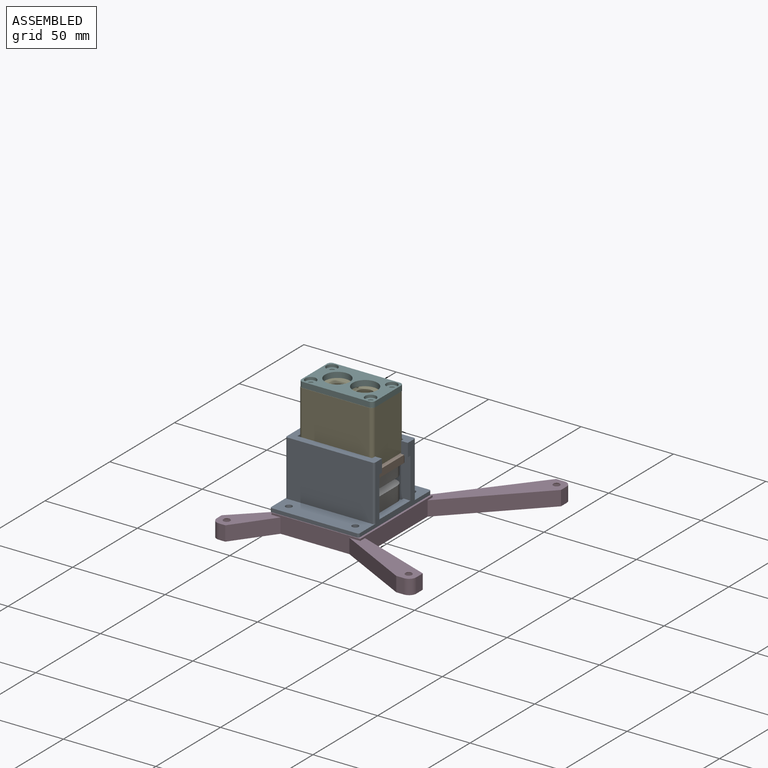
[diagram: assembled view]
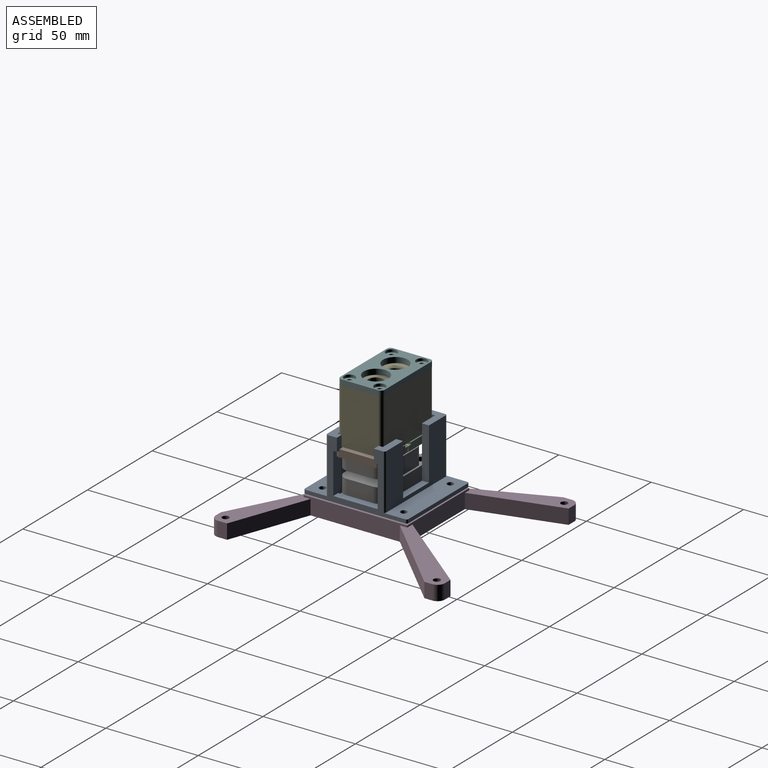
[diagram: assembled view, second angle]
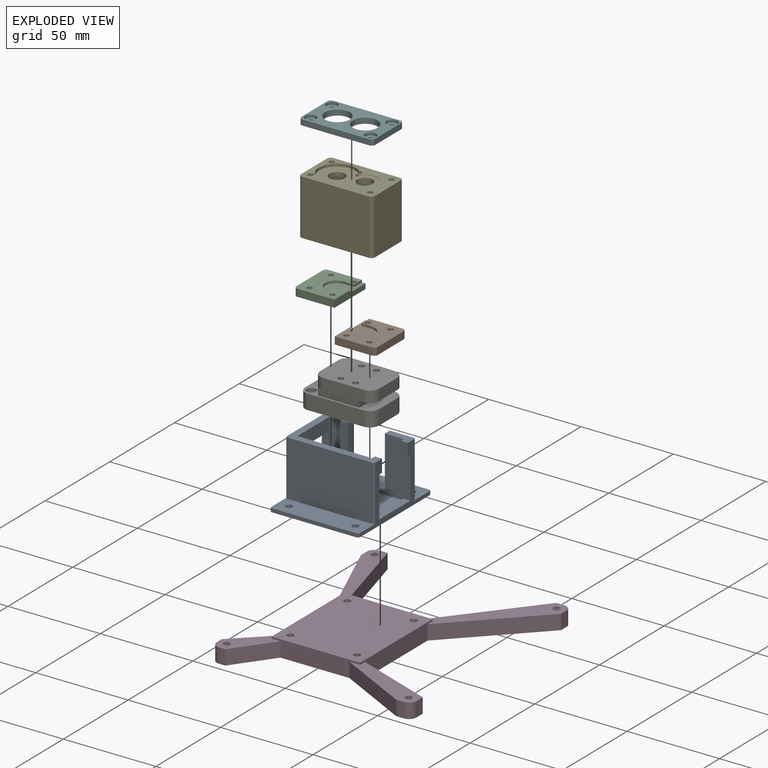
[diagram: exploded view]
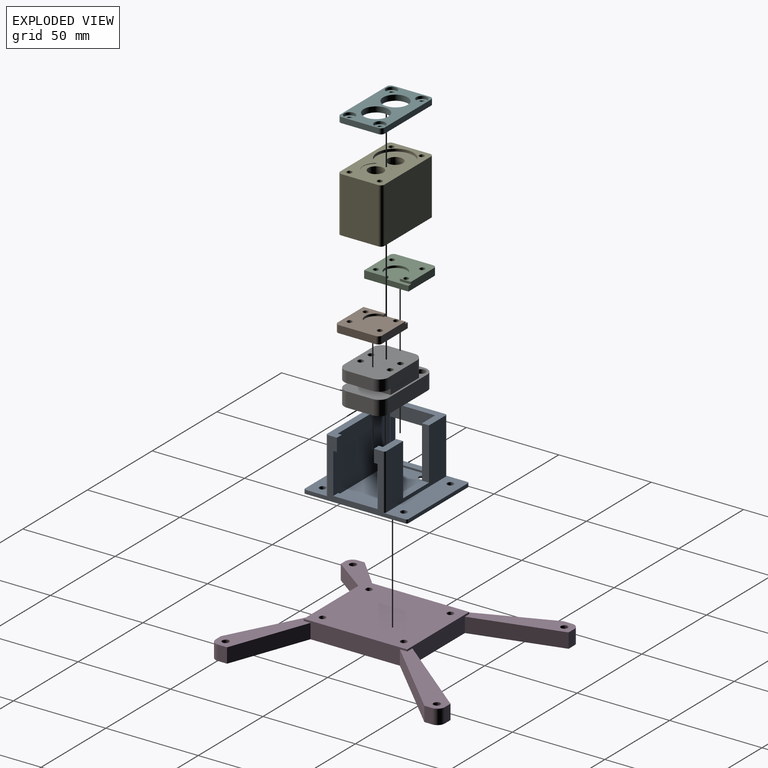
[diagram: exploded view, second angle]
FCSTD DOCUMENT  (FreeCAD 1.0R39319 (Git))
Label: BoltTaskAssembly_TypeB_V2
License: All rights reserved
LicenseURL: https://en.wikipedia.org/wiki/All_rights_reserved
objects: Sketcher::SketchObject×65, PartDesign::Hole×29, PartDesign::Mirrored×20, PartDesign::Pocket×19, PartDesign::Pad×17, PartDesign::Fillet×16, PartDesign::Body×11, App::Link×7, Assembly::JointGroup×1, Part::FeaturePython×1, Assembly::AssemblyObject×1
note: 425 computed .brp shape members not serialized (recipe doc carries the construction recipe); baked Part::Feature solids carry a one-line shape summary decoded from their .brp

FEATURE [Assembly::JointGroup] Joints
FEATURE [Sketcher::SketchObject] Sketch005
  ArcFitTolerance = 1e-06
  AttachmentSupport = -> [XY_Plane003]
  FullyConstrained = true
  MakeInternals = false
  MapMode = 5
  sketch-geometry (4):
    g0: LineSegment StartX=-12 StartY=20 StartZ=0 EndX=-12 EndY=-20 EndZ=0
    g1: LineSegment StartX=-12 StartY=-20 StartZ=0 EndX=12 EndY=-20 EndZ=0
    g2: LineSegment StartX=12 StartY=-20 StartZ=0 EndX=12 EndY=20 EndZ=0
    g3: LineSegment StartX=12 StartY=20 StartZ=0 EndX=-12 EndY=20 EndZ=0
  constraints (12):
    c: Coincident(g0,g1)
    c: Coincident(g1,g2)
    c: Coincident(g2,g3)
    c: Coincident(g3,g0)
    c: Vertical(g0)
    c: Vertical(g2)
    c: Horizontal(g1)
    c: Horizontal(g3)
    c: Distance(g0,g2) = 24
    c: Distance(g1,g3) = 40
    c: Distance(g0,g-2) = 12
    c: Distance(g1,g-1) = 20
FEATURE [PartDesign::Pad] Pad002
  Direction = (0,0,1)
  Length = 8
  Length2 = 10
  Profile = -> Sketch005
  ReferenceAxis = -> Sketch005 [N_Axis]
  Refine = true
  Suppressed = false
  Type = 0
FEATURE [App::Link] UnitMiniScale  label="UnitMiniScale001"
  LinkPlacement = pos=(2.16055,-2.02907,21.2724) rot=(0,0,1;1.5708rad)
  LinkedObject = -> Body002
  Placement = pos=(2.16055,-2.02907,21.2724) rot=(0,0,1;1.5708rad)
FEATURE [Sketcher::SketchObject] Sketch026
  ArcFitTolerance = 1e-06
  AttachmentSupport = -> [Pad002]
  ExternalGeometry = -> [Pad002]
  FullyConstrained = true
  MakeInternals = false
  MapMode = 5
  Placement = pos=(0,0,8) rot=(0,0,1;0rad)
  sketch-geometry (4):
    g0: LineSegment StartX=-11 StartY=12 StartZ=0 EndX=-11 EndY=-12 EndZ=0
    g1: LineSegment StartX=-11 StartY=-12 StartZ=0 EndX=11 EndY=-12 EndZ=0
    g2: LineSegment StartX=11 StartY=-12 StartZ=0 EndX=11 EndY=12 EndZ=0
    g3: LineSegment StartX=11 StartY=12 StartZ=0 EndX=-11 EndY=12 EndZ=0
  constraints (12):
    c: Coincident(g0,g1)
    c: Coincident(g1,g2)
    c: Coincident(g2,g3)
    c: Coincident(g3,g0)
    c: Vertical(g0)
    c: Vertical(g2)
    c: Horizontal(g1)
    c: Horizontal(g3)
    c: Distance(g3,g-4) = 8
    c: Distance(g-6,g1) = 8
    c: Distance(g-3,g2) = 1
    c: Distance(g0,g-5) = 1
FEATURE [PartDesign::Pad] Pad008
  BaseFeature = -> Pad002
  Direction = (0,0,1)
  Length = 4
  Length2 = 10
  Profile = -> Sketch026
  ReferenceAxis = -> Sketch026 [N_Axis]
  Refine = true
  Suppressed = false
  Type = 0
FEATURE [Sketcher::SketchObject] Sketch027
  ArcFitTolerance = 1e-06
  AttachmentSupport = -> [Pad008]
  ExternalGeometry = -> [Pad008]
  FullyConstrained = true
  MakeInternals = false
  MapMode = 5
  Placement = pos=(0,0,8) rot=(0,0,1;0rad)
  sketch-geometry (1):
    g0: Circle CenterX=-8 CenterY=16 CenterZ=0 NormalX=0 NormalY=0 NormalZ=1 AngleXU=0 Radius=2.425
  constraints (3):
    c: Diameter(g0) = 4.85
    c: Distance(g0,g-3) = 4
    c: Distance(g0,g-6) = 4
FEATURE [PartDesign::Hole] Hole010
  BaseFeature = -> Pad008
  CustomThreadClearance = 0
  Depth = 25
  DepthType = 0
  Diameter = 4.85
  DrillForDepth = false
  DrillPoint = 1
  DrillPointAngle = 118
  HoleCutCountersinkAngle = 90
  HoleCutCustomValues = false
  HoleCutDepth = 0
  HoleCutDiameter = 6.1
  HoleCutType = 0
  ModelThread = false
  Profile = -> Sketch027
  Refine = true
  Suppressed = false
  Tapered = false
  TaperedAngle = 90
  ThreadClass = 0
  ThreadDepth = 25
  ThreadDepthType = 0
  ThreadDirection = 0
  ThreadFit = 0
  ThreadSize = 0
  ThreadType = 0
  Threaded = false
  UseCustomThreadClearance = false
FEATURE [PartDesign::Mirrored] Mirrored014
  BaseFeature = -> Hole010
  MirrorPlane = -> Sketch027 [V_Axis]
  Originals = -> [Hole010]
  Refine = true
  Suppressed = false
  TransformMode = 0
FEATURE [Sketcher::SketchObject] Sketch028
  ArcFitTolerance = 1e-06
  AttachmentSupport = -> [Mirrored014]
  FullyConstrained = true
  MakeInternals = false
  MapMode = 5
  Placement = pos=(0,0,12) rot=(0,0,1;0rad)
  sketch-geometry (4):
    g0: LineSegment StartX=-12 StartY=12 StartZ=0 EndX=-12 EndY=-20 EndZ=0
    g1: LineSegment StartX=-12 StartY=-20 StartZ=0 EndX=12 EndY=-20 EndZ=0
    g2: LineSegment StartX=12 StartY=-20 StartZ=0 EndX=12 EndY=12 EndZ=0
    g3: LineSegment StartX=12 StartY=12 StartZ=0 EndX=-12 EndY=12 EndZ=0
  constraints (12):
    c: Coincident(g0,g1)
    c: Coincident(g1,g2)
    c: Coincident(g2,g3)
    c: Coincident(g3,g0)
    c: Vertical(g0)
    c: Vertical(g2)
    c: Horizontal(g1)
    c: Horizontal(g3)
    c: Distance(g0,g2) = 24
    c: Distance(g1,g3) = 32
    c: Distance(g-2,g0) = 12
    c: Distance(g1,g-1) = 20
FEATURE [PartDesign::Pad] Pad009
  BaseFeature = -> Mirrored014
  Direction = (0,0,1)
  Length = 6
  Length2 = 10
  Profile = -> Sketch028
  ReferenceAxis = -> Sketch028 [N_Axis]
  Refine = true
  Suppressed = false
  Type = 0
FEATURE [Sketcher::SketchObject] Sketch029
  ArcFitTolerance = 1e-06
  AttachmentSupport = -> [Pad009]
  ExternalGeometry = -> [Pad009]
  FullyConstrained = true
  MakeInternals = false
  MapMode = 5
  Placement = pos=(0,0,18) rot=(0,0,1;0rad)
  sketch-geometry (2):
    g0: Circle CenterX=-8 CenterY=4e-16 CenterZ=0 NormalX=0 NormalY=0 NormalZ=1 AngleXU=0 Radius=1.6
    g1: Circle CenterX=-8 CenterY=-8 CenterZ=0 NormalX=0 NormalY=0 NormalZ=1 AngleXU=0 Radius=1.6
  constraints (6):
    c: Diameter(g0) = 3.2
    c: Distance(g0,g-2) = 8
    c: Distance(g0,g-3) = 20
    c: Diameter(g1) = 3.2
    c: Distance(g1,g-2) = 8
    c: Distance(g1,g-3) = 12
FEATURE [PartDesign::Hole] Hole011
  BaseFeature = -> Pad009
  CustomThreadClearance = 0
  Depth = 5
  DepthType = 0
  Diameter = 3.2
  DrillForDepth = false
  DrillPoint = 1
  DrillPointAngle = 118
  HoleCutCountersinkAngle = 90
  HoleCutCustomValues = false
  HoleCutDepth = 0
  HoleCutDiameter = 6.1
  HoleCutType = 0
  ModelThread = false
  Profile = -> Sketch029
  Refine = true
  Suppressed = false
  Tapered = false
  TaperedAngle = 90
  ThreadClass = 0
  ThreadDepth = 5
  ThreadDepthType = 0
  ThreadDirection = 0
  ThreadFit = 0
  ThreadSize = 0
  ThreadType = 0
  Threaded = false
  UseCustomThreadClearance = false
FEATURE [PartDesign::Mirrored] Mirrored015
  BaseFeature = -> Hole011
  MirrorPlane = -> Sketch029 [V_Axis]
  Originals = -> [Hole011]
  Refine = true
  Suppressed = false
  TransformMode = 0
FEATURE [PartDesign::Fillet] Fillet012
  Base = -> Mirrored015 [Edge1,Edge2,Edge8,Edge5]
  BaseFeature = -> Mirrored015
  Radius = 5
  Refine = true
  SupportTransform = false
  Suppressed = false
  UseAllEdges = false
FEATURE [PartDesign::Fillet] Fillet013
  Base = -> Fillet012 [Edge50,Edge58,Edge42,Edge40]
  BaseFeature = -> Fillet012
  Radius = 5
  Refine = true
  SupportTransform = false
  Suppressed = false
  UseAllEdges = false
FEATURE [PartDesign::Body] Body002  label="UnitMiniScale"
  AllowCompound = false
  Group = -> [Sketch005,Pad002,Sketch026,Pad008,Sketch027,Hole010,Mirrored014,Sketch028,Pad009,Sketch029,Hole011,Mirrored015,Fillet012,Fillet013]
  Origin = -> Origin003
  Tip = -> Fillet013
FEATURE [Sketcher::SketchObject] Sketch041
  ArcFitTolerance = 1e-06
  AttachmentSupport = -> [XY_Plane007]
  FullyConstrained = true
  MakeInternals = false
  MapMode = 5
  sketch-geometry (4):
    g0: LineSegment StartX=-20 StartY=12 StartZ=0 EndX=-20 EndY=-12 EndZ=0
    g1: LineSegment StartX=-20 StartY=-12 StartZ=0 EndX=20 EndY=-12 EndZ=0
    g2: LineSegment StartX=20 StartY=-12 StartZ=0 EndX=20 EndY=12 EndZ=0
    g3: LineSegment StartX=20 StartY=12 StartZ=0 EndX=-20 EndY=12 EndZ=0
  constraints (12):
    c: Coincident(g0,g1)
    c: Coincident(g1,g2)
    c: Coincident(g2,g3)
    c: Coincident(g3,g0)
    c: Vertical(g0)
    c: Vertical(g2)
    c: Horizontal(g1)
    c: Horizontal(g3)
    c: Distance(g0,g2) = 40
    c: Distance(g1,g3) = 24
    c: Distance(g0,g-2) = 20
    c: Distance(g-1,g3) = 12
FEATURE [PartDesign::Pad] Pad012
  Direction = (0,0,1)
  Length = 30
  Length2 = 10
  Profile = -> Sketch041
  ReferenceAxis = -> Sketch041 [N_Axis]
  Refine = true
  Suppressed = false
  Type = 0
FEATURE [Sketcher::SketchObject] Sketch042
  ArcFitTolerance = 1e-06
  AttachmentSupport = -> [Pad012]
  FullyConstrained = true
  MakeInternals = false
  MapMode = 5
  Placement = pos=(0,0,30) rot=(0,0,1;0rad)
  sketch-geometry (1):
    g0: Circle CenterX=7.5 CenterY=0 CenterZ=0 NormalX=0 NormalY=0 NormalZ=1 AngleXU=0 Radius=4.15
  constraints (3):
    c: Diameter(g0) = 8.3
    c: PointOnObject(g0,g-1)
    c: Distance(g0,g-1) = 7.5
FEATURE [PartDesign::Hole] Hole017
  BaseFeature = -> Pad012
  CustomThreadClearance = 0
  Depth = 50
  DepthType = 0
  Diameter = 8.3
  DrillForDepth = false
  DrillPoint = 1
  DrillPointAngle = 118
  HoleCutCountersinkAngle = 90
  HoleCutCustomValues = false
  HoleCutDepth = 0
  HoleCutDiameter = 6.1
  HoleCutType = 0
  ModelThread = false
  Profile = -> Sketch042
  Refine = true
  Suppressed = false
  Tapered = false
  TaperedAngle = 90
  ThreadClass = 0
  ThreadDepth = 50
  ThreadDepthType = 0
  ThreadDirection = 0
  ThreadFit = 0
  ThreadSize = 0
  ThreadType = 0
  Threaded = false
  UseCustomThreadClearance = false
FEATURE [PartDesign::Mirrored] Mirrored019
  BaseFeature = -> Hole017
  MirrorPlane = -> Sketch042 [V_Axis]
  Originals = -> [Hole017]
  Refine = true
  Suppressed = false
  TransformMode = 0
FEATURE [Sketcher::SketchObject] Sketch043
  ArcFitTolerance = 1e-06
  AttachmentSupport = -> [Mirrored019]
  ExternalGeometry = -> [Mirrored019]
  FullyConstrained = true
  MakeInternals = false
  MapMode = 5
  Placement = pos=(0,0,30) rot=(0,0,1;0rad)
  sketch-geometry (1):
    g0: Circle CenterX=7.5 CenterY=0 CenterZ=0 NormalX=0 NormalY=0 NormalZ=1 AngleXU=0 Radius=9.9
  constraints (2):
    c: Diameter(g0) = 19.8
    c: Coincident(g0,g-3)
FEATURE [PartDesign::Pocket] Pocket012
  BaseFeature = -> Mirrored019
  Direction = (0,0,-1)
  Length = 1.4
  Length2 = 5
  Profile = -> Sketch043
  ReferenceAxis = -> Sketch043 [N_Axis]
  Refine = true
  Suppressed = false
  Type = 0
FEATURE [Sketcher::SketchObject] Sketch048
  ArcFitTolerance = 1e-06
  AttachmentSupport = -> [XY_Plane008]
  FullyConstrained = true
  MakeInternals = false
  MapMode = 5
  sketch-geometry (4):
    g0: LineSegment StartX=-20 StartY=12 StartZ=0 EndX=-20 EndY=-12 EndZ=0
    g1: LineSegment StartX=-20 StartY=-12 StartZ=0 EndX=20 EndY=-12 EndZ=0
    g2: LineSegment StartX=20 StartY=-12 StartZ=0 EndX=20 EndY=12 EndZ=0
    g3: LineSegment StartX=20 StartY=12 StartZ=0 EndX=-20 EndY=12 EndZ=0
  constraints (12):
    c: Coincident(g0,g1)
    c: Coincident(g1,g2)
    c: Coincident(g2,g3)
    c: Coincident(g3,g0)
    c: Vertical(g0)
    c: Vertical(g2)
    c: Horizontal(g1)
    c: Horizontal(g3)
    c: Distance(g0,g2) = 40
    c: Distance(g1,g3) = 24
    c: Distance(g-2,g0) = 20
    c: Distance(g3,g-1) = 12
FEATURE [PartDesign::Pad] Pad013
  Direction = (0,0,1)
  Length = 3
  Length2 = 10
  Profile = -> Sketch048
  ReferenceAxis = -> Sketch048 [N_Axis]
  Refine = true
  Suppressed = false
  Type = 0
FEATURE [Sketcher::SketchObject] Sketch049
  ArcFitTolerance = 1e-06
  AttachmentSupport = -> [Pad013]
  ExternalGeometry = -> [Pad013]
  FullyConstrained = true
  MakeInternals = false
  MapMode = 5
  Placement = pos=(0,0,3) rot=(0,0,1;0rad)
  sketch-geometry (2):
    g0: Circle CenterX=16.2 CenterY=8.2 CenterZ=0 NormalX=0 NormalY=0 NormalZ=1 AngleXU=0 Radius=3
    g1: Circle CenterX=16.2 CenterY=-8.2 CenterZ=0 NormalX=0 NormalY=0 NormalZ=1 AngleXU=0 Radius=3
  constraints (6):
    c: Diameter(g0) = 6
    c: Distance(g0,g-3) = 3.8
    c: Distance(g0,g-4) = 3.8
    c: Diameter(g1) = 6
    c: Distance(g1,g-4) = 3.8
    c: Distance(g1,g-5) = 3.8
FEATURE [PartDesign::Hole] Hole020
  BaseFeature = -> Pad013
  CustomThreadClearance = 0
  Depth = 25
  DepthType = 0
  Diameter = 2.8
  DrillForDepth = false
  DrillPoint = 1
  DrillPointAngle = 118
  HoleCutCountersinkAngle = 90
  HoleCutCustomValues = false
  HoleCutDepth = 1.5
  HoleCutDiameter = 6
  HoleCutType = 1
  ModelThread = false
  Profile = -> Sketch049
  Refine = true
  Suppressed = false
  Tapered = false
  TaperedAngle = 90
  ThreadClass = 0
  ThreadDepth = 25
  ThreadDepthType = 0
  ThreadDirection = 0
  ThreadFit = 0
  ThreadSize = 0
  ThreadType = 0
  Threaded = false
  UseCustomThreadClearance = false
FEATURE [PartDesign::Mirrored] Mirrored023
  BaseFeature = -> Hole020
  MirrorPlane = -> Sketch049 [V_Axis]
  Originals = -> [Hole020]
  Refine = true
  Suppressed = false
  TransformMode = 0
FEATURE [Sketcher::SketchObject] Sketch050
  ArcFitTolerance = 1e-06
  AttachmentSupport = -> [Mirrored023]
  FullyConstrained = true
  MakeInternals = false
  MapMode = 5
  Placement = pos=(0,0,3) rot=(0,0,1;0rad)
  sketch-geometry (1):
    g0: Circle CenterX=7.5 CenterY=0 CenterZ=0 NormalX=0 NormalY=0 NormalZ=1 AngleXU=0 Radius=6.7
  constraints (3):
    c: Diameter(g0) = 13.4
    c: PointOnObject(g0,g-1)
    c: Distance(g0,g-2) = 7.5
FEATURE [PartDesign::Hole] Hole021
  BaseFeature = -> Mirrored023
  CustomThreadClearance = 0
  Depth = 25
  DepthType = 0
  Diameter = 13.4
  DrillForDepth = false
  DrillPoint = 1
  DrillPointAngle = 118
  HoleCutCountersinkAngle = 90
  HoleCutCustomValues = false
  HoleCutDepth = 0
  HoleCutDiameter = 0
  HoleCutType = 0
  ModelThread = false
  Profile = -> Sketch050
  Refine = true
  Suppressed = false
  Tapered = false
  TaperedAngle = 90
  ThreadClass = 0
  ThreadDepth = 25
  ThreadDepthType = 0
  ThreadDirection = 0
  ThreadFit = 0
  ThreadSize = 0
  ThreadType = 0
  Threaded = false
  UseCustomThreadClearance = false
FEATURE [PartDesign::Mirrored] Mirrored024
  BaseFeature = -> Hole021
  MirrorPlane = -> Sketch050 [V_Axis]
  Originals = -> [Hole021]
  Refine = true
  Suppressed = false
  TransformMode = 0
FEATURE [Sketcher::SketchObject] Sketch051
  ArcFitTolerance = 1e-06
  AttachmentSupport = -> [XY_Plane009]
  FullyConstrained = true
  MakeInternals = false
  MapMode = 5
  sketch-geometry (4):
    g0: LineSegment StartX=0.1 StartY=12 StartZ=0 EndX=0.1 EndY=-12 EndZ=0
    g1: LineSegment StartX=0.1 StartY=-12 StartZ=0 EndX=22 EndY=-12 EndZ=0
    g2: LineSegment StartX=22 StartY=-12 StartZ=0 EndX=22 EndY=12 EndZ=0
    g3: LineSegment StartX=22 StartY=12 StartZ=0 EndX=0.1 EndY=12 EndZ=0
  constraints (12):
    c: Coincident(g0,g1)
    c: Coincident(g1,g2)
    c: Coincident(g2,g3)
    c: Coincident(g3,g0)
    c: Vertical(g0)
    c: Vertical(g2)
    c: Horizontal(g1)
    c: Horizontal(g3)
    c: Distance(g0,g2) = 21.9
    c: Distance(g1,g3) = 24
    c: Distance(g2,g-2) = 22
    c: Distance(g1,g-1) = 12
FEATURE [PartDesign::Pad] Pad014
  Direction = (0,0,1)
  Length = 4
  Length2 = 10
  Profile = -> Sketch051
  ReferenceAxis = -> Sketch051 [N_Axis]
  Refine = true
  Suppressed = false
  Type = 0
FEATURE [Sketcher::SketchObject] Sketch052
  ArcFitTolerance = 1e-06
  AttachmentSupport = -> [Pad014]
  FullyConstrained = true
  MakeInternals = false
  MapMode = 5
  Placement = pos=(0,0,4) rot=(0,0,1;0rad)
  sketch-geometry (1):
    g0: Circle CenterX=7.5 CenterY=0 CenterZ=0 NormalX=0 NormalY=0 NormalZ=1 AngleXU=0 Radius=5.9
  constraints (3):
    c: Diameter(g0) = 11.8
    c: PointOnObject(g0,g-1)
    c: Distance(g0,g-2) = 7.5
FEATURE [PartDesign::Pocket] Pocket015
  BaseFeature = -> Pad014
  Direction = (0,0,-1)
  Length = 1.2
  Length2 = 5
  Profile = -> Sketch052
  ReferenceAxis = -> Sketch052 [N_Axis]
  Refine = true
  Suppressed = false
  Type = 0
FEATURE [PartDesign::Mirrored] Mirrored025
  BaseFeature = -> Pocket015
  MirrorPlane = -> Sketch052 [V_Axis]
  Originals = -> [Pocket015]
  Refine = true
  Suppressed = false
  TransformMode = 0
FEATURE [Sketcher::SketchObject] Sketch053
  ArcFitTolerance = 1e-06
  AttachmentSupport = -> [Mirrored025]
  ExternalGeometry = -> [Mirrored025]
  FullyConstrained = true
  MakeInternals = false
  MapMode = 5
  Placement = pos=(0,0,4) rot=(0,0,1;0rad)
  sketch-geometry (8):
    g0: LineSegment StartX=-8 StartY=6 StartZ=0 EndX=-8 EndY=0 EndZ=0
    g1: LineSegment StartX=-8 StartY=0 StartZ=0 EndX=8 EndY=0 EndZ=0
    g2: LineSegment StartX=8 StartY=0 StartZ=0 EndX=8 EndY=6 EndZ=0
    g3: LineSegment StartX=8 StartY=6 StartZ=0 EndX=-8 EndY=6 EndZ=0
    g4: LineSegment StartX=-2 StartY=12 StartZ=0 EndX=-2 EndY=6 EndZ=0
    g5: LineSegment StartX=-2 StartY=6 StartZ=0 EndX=2 EndY=6 EndZ=0
    g6: LineSegment StartX=2 StartY=6 StartZ=0 EndX=2 EndY=12 EndZ=0
    g7: LineSegment StartX=2 StartY=12 StartZ=0 EndX=-2 EndY=12 EndZ=0
  constraints (24):
    c: Coincident(g0,g1)
    c: Coincident(g1,g2)
    c: Coincident(g2,g3)
    c: Coincident(g3,g0)
    c: Vertical(g0)
    c: Vertical(g2)
    c: Horizontal(g1)
    c: Horizontal(g3)
    c: Distance(g0,g2) = 16
    c: Distance(g1,g3) = 6
    c: Distance(g-2,g0) = 8
    c: Distance(g3,g-3) = 6
    c: Coincident(g4,g5)
    c: Coincident(g5,g6)
    c: Coincident(g6,g7)
    c: Coincident(g7,g4)
    c: Vertical(g4)
    c: Vertical(g6)
    c: Horizontal(g5)
    c: Horizontal(g7)
    c: PointOnObject(g4,g-3)
    c: PointOnObject(g5,g3)
    c: Distance(g-2,g4) = 2
    c: Distance(g-2,g6) = 2
FEATURE [PartDesign::Pocket] Pocket016
  BaseFeature = -> Mirrored025
  Direction = (0,0,-1)
  Length = 1.2
  Length2 = 5
  Profile = -> Sketch053
  ReferenceAxis = -> Sketch053 [N_Axis]
  Refine = true
  Suppressed = false
  Type = 0
FEATURE [Sketcher::SketchObject] Sketch054
  ArcFitTolerance = 1e-06
  AttachmentSupport = -> [Pocket016]
  ExternalGeometry = -> [Pocket016]
  FullyConstrained = true
  MakeInternals = false
  MapMode = 5
  Placement = pos=(0,0,0) rot=(1,0,0;3.14159rad)
  sketch-geometry (4):
    g0: Circle CenterX=16.2 CenterY=8.2 CenterZ=0 NormalX=0 NormalY=0 NormalZ=1 AngleXU=0 Radius=3
    g1: Circle CenterX=16.2 CenterY=-8.2 CenterZ=0 NormalX=0 NormalY=0 NormalZ=1 AngleXU=0 Radius=3
    g2: Circle CenterX=3.8 CenterY=8.2 CenterZ=0 NormalX=0 NormalY=0 NormalZ=1 AngleXU=0 Radius=3
    g3: Circle CenterX=3.8 CenterY=-8.2 CenterZ=0 NormalX=0 NormalY=0 NormalZ=1 AngleXU=0 Radius=3
  constraints (12):
    c: Diameter(g0) = 6
    c: Distance(g0,g-3) = 3.8
    c: Distance(g0,g-4) = 5.8
    c: Diameter(g1) = 6
    c: Distance(g1,g-5) = 3.8
    c: Distance(g1,g-4) = 5.8
    c: Diameter(g2) = 6
    c: Distance(g2,g-3) = 3.8
    c: Distance(g2,g-2) = 3.8
    c: Diameter(g3) = 6
    c: Distance(g3,g-5) = 3.8
    c: Distance(g3,g-2) = 3.8
FEATURE [PartDesign::Hole] Hole022
  BaseFeature = -> Pocket016
  CustomThreadClearance = 0
  Depth = 25
  DepthType = 0
  Diameter = 2.8
  DrillForDepth = false
  DrillPoint = 1
  DrillPointAngle = 118
  HoleCutCountersinkAngle = 90
  HoleCutCustomValues = false
  HoleCutDepth = 2
  HoleCutDiameter = 6
  HoleCutType = 1
  ModelThread = false
  Profile = -> Sketch054
  Refine = true
  Suppressed = false
  Tapered = false
  TaperedAngle = 90
  ThreadClass = 0
  ThreadDepth = 25
  ThreadDepthType = 0
  ThreadDirection = 0
  ThreadFit = 0
  ThreadSize = 0
  ThreadType = 0
  Threaded = false
  UseCustomThreadClearance = false
FEATURE [PartDesign::Mirrored] Mirrored026
  BaseFeature = -> Hole022
  MirrorPlane = -> Sketch054 [V_Axis]
  Originals = -> [Hole022]
  Refine = true
  Suppressed = false
  TransformMode = 0
FEATURE [Sketcher::SketchObject] Sketch065
  ArcFitTolerance = 1e-06
  AttachmentSupport = -> [Pocket012]
  ExternalGeometry = -> [Pocket012]
  FullyConstrained = true
  MakeInternals = false
  MapMode = 5
  Placement = pos=(0,0,0) rot=(1,0,0;3.14159rad)
  sketch-geometry (7):
    g0: LineSegment StartX=13.9952 StartY=3.75 StartZ=0 EndX=7.5 EndY=7.5 EndZ=0
    g1: LineSegment StartX=7.5 StartY=7.5 StartZ=0 EndX=1.00481 EndY=3.75 EndZ=0
    g2: LineSegment StartX=1.00481 StartY=3.75 StartZ=0 EndX=1.00481 EndY=-3.75 EndZ=0
    g3: LineSegment StartX=1.00481 StartY=-3.75 StartZ=0 EndX=7.5 EndY=-7.5 EndZ=0
    g4: LineSegment StartX=7.5 StartY=-7.5 StartZ=0 EndX=13.9952 EndY=-3.75 EndZ=0
    g5: LineSegment StartX=13.9952 StartY=-3.75 StartZ=0 EndX=13.9952 EndY=3.75 EndZ=0
    g6: Circle [constr] CenterX=7.5 CenterY=0 CenterZ=0 NormalX=0 NormalY=0 NormalZ=1 AngleXU=0 Radius=7.5
  constraints (16):
    c: Coincident(g0,g1)
    c: Coincident(g1,g2)
    c: Coincident(g2,g3)
    c: Coincident(g3,g4)
    c: Coincident(g4,g5)
    c: Coincident(g5,g0)
    c: Equal(g0, g1-g5) x5
    c: PointOnObject(g0,g6)
    c: PointOnObject(g1,g6)
    c: PointOnObject(g2,g6)
    c: PointOnObject(g3,g6)
    c: PointOnObject(g4,g6)
    c: PointOnObject(g5,g6)
    c: Radius(g6) = 7.5
    c: Coincident(g6,g-3)
    c: Parallel(g2,g-2)
FEATURE [PartDesign::Pocket] Pocket021
  BaseFeature = -> Pocket012
  Direction = (0,0,1)
  Length = 6
  Length2 = 5
  Profile = -> Sketch065
  ReferenceAxis = -> Sketch065 [N_Axis]
  Refine = true
  Suppressed = false
  Type = 0
FEATURE [PartDesign::Mirrored] Mirrored029
  BaseFeature = -> Pocket021
  MirrorPlane = -> Sketch065 [V_Axis]
  Originals = -> [Pocket021]
  Refine = true
  Suppressed = false
  TransformMode = 0
FEATURE [Sketcher::SketchObject] Sketch066
  ArcFitTolerance = 1e-06
  AttachmentSupport = -> [Mirrored029]
  ExternalGeometry = -> [Mirrored029]
  FullyConstrained = true
  MakeInternals = false
  MapMode = 5
  Placement = pos=(0,0,0) rot=(1,0,0;3.14159rad)
  sketch-geometry (4):
    g0: Circle CenterX=-16.2 CenterY=8.2 CenterZ=0 NormalX=0 NormalY=0 NormalZ=1 AngleXU=0 Radius=1.4
    g1: Circle CenterX=-16.2 CenterY=-8.2 CenterZ=0 NormalX=0 NormalY=0 NormalZ=1 AngleXU=0 Radius=1.4
    g2: Circle CenterX=16.2 CenterY=8.2 CenterZ=0 NormalX=0 NormalY=0 NormalZ=1 AngleXU=0 Radius=1.4
    g3: Circle CenterX=16.2 CenterY=-8.2 CenterZ=0 NormalX=0 NormalY=0 NormalZ=1 AngleXU=0 Radius=1.4
  constraints (12):
    c: Diameter(g0) = 2.8
    c: Distance(g0,g-3) = 3.8
    c: Distance(g0,g-4) = 3.8
    c: Diameter(g1) = 2.8
    c: Distance(g1,g-4) = 3.8
    c: Distance(g1,g-5) = 3.8
    c: Diameter(g2) = 2.8
    c: Distance(g2,g-3) = 3.8
    c: Distance(g2,g-6) = 3.8
    c: Diameter(g3) = 2.8
    c: Distance(g3,g-6) = 3.8
    c: Distance(g3,g-5) = 3.8
FEATURE [PartDesign::Hole] Hole026
  BaseFeature = -> Mirrored029
  CustomThreadClearance = 0
  Depth = 50
  DepthType = 0
  Diameter = 2.8
  DrillForDepth = false
  DrillPoint = 1
  DrillPointAngle = 118
  HoleCutCountersinkAngle = 90
  HoleCutCustomValues = false
  HoleCutDepth = 0
  HoleCutDiameter = 6.1
  HoleCutType = 0
  ModelThread = false
  Profile = -> Sketch066
  Refine = true
  Suppressed = false
  Tapered = false
  TaperedAngle = 90
  ThreadClass = 0
  ThreadDepth = 50
  ThreadDepthType = 0
  ThreadDirection = 0
  ThreadFit = 0
  ThreadSize = 0
  ThreadType = 0
  Threaded = false
  UseCustomThreadClearance = false
FEATURE [Sketcher::SketchObject] Sketch067
  ArcFitTolerance = 1e-06
  AttachmentSupport = -> [Hole026]
  FullyConstrained = true
  MakeInternals = false
  MapMode = 5
  Placement = pos=(0,0,0) rot=(1,0,0;3.14159rad)
  sketch-geometry (1):
    g0: Circle CenterX=0 CenterY=6 CenterZ=0 NormalX=0 NormalY=0 NormalZ=1 AngleXU=0 Radius=1.5
  constraints (3):
    c: Diameter(g0) = 3
    c: PointOnObject(g0,g-2)
    c: DistanceY(g-1,g0) = 6
FEATURE [PartDesign::Hole] Hole027
  BaseFeature = -> Hole026
  CustomThreadClearance = 0
  Depth = 50
  DepthType = 0
  Diameter = 3
  DrillForDepth = false
  DrillPoint = 1
  DrillPointAngle = 118
  HoleCutCountersinkAngle = 90
  HoleCutCustomValues = false
  HoleCutDepth = 0
  HoleCutDiameter = 6.1
  HoleCutType = 0
  ModelThread = false
  Profile = -> Sketch067
  Refine = true
  Suppressed = false
  Tapered = false
  TaperedAngle = 90
  ThreadClass = 0
  ThreadDepth = 50
  ThreadDepthType = 0
  ThreadDirection = 0
  ThreadFit = 0
  ThreadSize = 0
  ThreadType = 0
  Threaded = false
  UseCustomThreadClearance = false
FEATURE [Sketcher::SketchObject] Sketch068
  ArcFitTolerance = 1e-06
  AttachmentSupport = -> [Hole027]
  ExternalGeometry = -> [Hole027]
  FullyConstrained = true
  MakeInternals = false
  MapMode = 5
  Placement = pos=(0,0,30) rot=(0,0,1;0rad)
  sketch-geometry (1):
    g0: Circle CenterX=-7.5 CenterY=0 CenterZ=0 NormalX=0 NormalY=0 NormalZ=1 AngleXU=0 Radius=7
  constraints (2):
    c: Diameter(g0) = 14
    c: Coincident(g0,g-3)
FEATURE [PartDesign::Pocket] Pocket022
  BaseFeature = -> Hole027
  Direction = (0,0,-1)
  Length = 0.2
  Length2 = 5
  Profile = -> Sketch068
  ReferenceAxis = -> Sketch068 [N_Axis]
  Refine = true
  Suppressed = false
  Type = 0
FEATURE [Sketcher::SketchObject] Sketch070
  ArcFitTolerance = 1e-06
  AttachmentSupport = -> [Pocket022]
  ExternalGeometry = -> [Pocket022]
  FullyConstrained = true
  MakeInternals = false
  MapMode = 5
  Placement = pos=(0,0,0) rot=(1,0,0;3.14159rad)
  sketch-geometry (2):
    g0: Circle CenterX=-3.8 CenterY=-8.2 CenterZ=0 NormalX=0 NormalY=0 NormalZ=1 AngleXU=0 Radius=1.4
    g1: Circle CenterX=3.8 CenterY=-8.2 CenterZ=0 NormalX=0 NormalY=0 NormalZ=1 AngleXU=0 Radius=1.4
  constraints (6):
    c: Diameter(g0) = 2.8
    c: Distance(g0,g-3) = 3.8
    c: Distance(g0,g-2) = 3.8
    c: Diameter(g1) = 2.8
    c: Distance(g1,g-3) = 3.8
    c: Distance(g1,g-2) = 3.8
FEATURE [PartDesign::Hole] Hole028
  BaseFeature = -> Pocket022
  CustomThreadClearance = 0
  Depth = 20
  DepthType = 0
  Diameter = 2.8
  DrillForDepth = false
  DrillPoint = 1
  DrillPointAngle = 118
  HoleCutCountersinkAngle = 90
  HoleCutCustomValues = false
  HoleCutDepth = 0
  HoleCutDiameter = 6.1
  HoleCutType = 0
  ModelThread = false
  Profile = -> Sketch070
  Refine = true
  Suppressed = false
  Tapered = false
  TaperedAngle = 90
  ThreadClass = 0
  ThreadDepth = 20
  ThreadDepthType = 0
  ThreadDirection = 0
  ThreadFit = 0
  ThreadSize = 0
  ThreadType = 0
  Threaded = false
  UseCustomThreadClearance = false
FEATURE [PartDesign::Mirrored] Mirrored030
  BaseFeature = -> Hole028
  MirrorPlane = -> XZ_Plane007
  Originals = -> [Hole028]
  Refine = true
  Suppressed = false
  TransformMode = 0
FEATURE [PartDesign::Fillet] Fillet024
  Base = -> Mirrored030 [Edge5,Edge1,Edge2,Edge8]
  BaseFeature = -> Mirrored030
  Radius = 2
  Refine = true
  SupportTransform = false
  Suppressed = false
  UseAllEdges = false
FEATURE [PartDesign::Body] Body006  label="Main"
  AllowCompound = false
  Group = -> [Sketch041,Pad012,Sketch042,Hole017,Mirrored019,Sketch043,Pocket012,Sketch065,Pocket021,Mirrored029,Sketch066,Hole026,Sketch067,Hole027,Sketch068,Pocket022,Sketch070,Hole028,Mirrored030,Fillet024]
  Origin = -> Origin007
  Tip = -> Fillet024
FEATURE [PartDesign::Fillet] Fillet025
  Base = -> Mirrored024 [Edge5,Edge1,Edge2,Edge8]
  BaseFeature = -> Mirrored024
  Radius = 2
  Refine = true
  SupportTransform = false
  Suppressed = false
  UseAllEdges = false
FEATURE [PartDesign::Body] Body007  label="Top"
  AllowCompound = false
  Group = -> [Sketch048,Pad013,Sketch049,Hole020,Mirrored023,Sketch050,Hole021,Mirrored024,Fillet025]
  Origin = -> Origin008
  Tip = -> Fillet025
FEATURE [Sketcher::SketchObject] Sketch071
  ArcFitTolerance = 1e-06
  AttachmentSupport = -> [XY_Plane011]
  FullyConstrained = true
  MakeInternals = false
  MapMode = 5
  sketch-geometry (4):
    g0: LineSegment StartX=-22 StartY=12 StartZ=0 EndX=-22 EndY=-12 EndZ=0
    g1: LineSegment StartX=-22 StartY=-12 StartZ=0 EndX=-0.1 EndY=-12 EndZ=0
    g2: LineSegment StartX=-0.1 StartY=-12 StartZ=0 EndX=-0.1 EndY=12 EndZ=0
    g3: LineSegment StartX=-0.1 StartY=12 StartZ=0 EndX=-22 EndY=12 EndZ=0
  constraints (12):
    c: Coincident(g0,g1)
    c: Coincident(g1,g2)
    c: Coincident(g2,g3)
    c: Coincident(g3,g0)
    c: Vertical(g0)
    c: Vertical(g2)
    c: Horizontal(g1)
    c: Horizontal(g3)
    c: Distance(g0,g2) = 21.9
    c: Distance(g1,g3) = 24
    c: Distance(g1,g-1) = 12
    c: Distance(g0,g-2) = 22
FEATURE [PartDesign::Pad] Pad017
  Direction = (0,0,1)
  Length = 4
  Length2 = 10
  Profile = -> Sketch071
  ReferenceAxis = -> Sketch071 [N_Axis]
  Refine = true
  Suppressed = false
  Type = 0
FEATURE [Sketcher::SketchObject] Sketch072
  ArcFitTolerance = 1e-06
  AttachmentSupport = -> [Pad017]
  FullyConstrained = true
  MakeInternals = false
  MapMode = 5
  Placement = pos=(0,0,4) rot=(0,0,1;0rad)
  sketch-geometry (1):
    g0: Circle CenterX=7.5 CenterY=0 CenterZ=0 NormalX=0 NormalY=0 NormalZ=1 AngleXU=0 Radius=5.9
  constraints (3):
    c: Diameter(g0) = 11.8
    c: PointOnObject(g0,g-1)
    c: Distance(g0,g-2) = 7.5
FEATURE [PartDesign::Pocket] Pocket024
  BaseFeature = -> Pad017
  Direction = (0,0,-1)
  Length = 1.2
  Length2 = 5
  Profile = -> Sketch072
  ReferenceAxis = -> Sketch072 [N_Axis]
  Refine = true
  Suppressed = false
  Type = 0
FEATURE [PartDesign::Mirrored] Mirrored031
  BaseFeature = -> Pocket024
  MirrorPlane = -> Sketch072 [V_Axis]
  Originals = -> [Pocket024]
  Refine = true
  Suppressed = false
  TransformMode = 0
FEATURE [Sketcher::SketchObject] Sketch073
  ArcFitTolerance = 1e-06
  AttachmentSupport = -> [Mirrored031]
  ExternalGeometry = -> [Mirrored031]
  FullyConstrained = true
  MakeInternals = false
  MapMode = 5
  Placement = pos=(0,0,4) rot=(0,0,1;0rad)
  sketch-geometry (8):
    g0: LineSegment StartX=-8 StartY=6 StartZ=0 EndX=-8 EndY=0 EndZ=0
    g1: LineSegment StartX=-8 StartY=0 StartZ=0 EndX=8 EndY=0 EndZ=0
    g2: LineSegment StartX=8 StartY=0 StartZ=0 EndX=8 EndY=6 EndZ=0
    g3: LineSegment StartX=8 StartY=6 StartZ=0 EndX=-8 EndY=6 EndZ=0
    g4: LineSegment StartX=-2 StartY=12 StartZ=0 EndX=-2 EndY=6 EndZ=0
    g5: LineSegment StartX=-2 StartY=6 StartZ=0 EndX=2 EndY=6 EndZ=0
    g6: LineSegment StartX=2 StartY=6 StartZ=0 EndX=2 EndY=12 EndZ=0
    g7: LineSegment StartX=2 StartY=12 StartZ=0 EndX=-2 EndY=12 EndZ=0
  constraints (24):
    c: Coincident(g0,g1)
    c: Coincident(g1,g2)
    c: Coincident(g2,g3)
    c: Coincident(g3,g0)
    c: Vertical(g0)
    c: Vertical(g2)
    c: Horizontal(g1)
    c: Horizontal(g3)
    c: Distance(g0,g2) = 16
    c: Distance(g1,g3) = 6
    c: Distance(g-2,g0) = 8
    c: Distance(g3,g-3) = 6
    c: Coincident(g4,g5)
    c: Coincident(g5,g6)
    c: Coincident(g6,g7)
    c: Coincident(g7,g4)
    c: Vertical(g4)
    c: Vertical(g6)
    c: Horizontal(g5)
    c: Horizontal(g7)
    c: PointOnObject(g4,g-3)
    c: PointOnObject(g5,g3)
    c: Distance(g-2,g4) = 2
    c: Distance(g-2,g6) = 2
FEATURE [PartDesign::Pocket] Pocket025
  BaseFeature = -> Mirrored031
  Direction = (0,0,-1)
  Length = 1.2
  Length2 = 5
  Profile = -> Sketch073
  ReferenceAxis = -> Sketch073 [N_Axis]
  Refine = true
  Suppressed = false
  Type = 0
FEATURE [Sketcher::SketchObject] Sketch074
  ArcFitTolerance = 1e-06
  AttachmentSupport = -> [Pocket025]
  ExternalGeometry = -> [Pocket025]
  FullyConstrained = true
  MakeInternals = false
  MapMode = 5
  Placement = pos=(0,0,0) rot=(1,0,0;3.14159rad)
  sketch-geometry (4):
    g0: Circle CenterX=-16.2 CenterY=8.2 CenterZ=0 NormalX=0 NormalY=0 NormalZ=1 AngleXU=0 Radius=3
    g1: Circle CenterX=-16.2 CenterY=-8.2 CenterZ=0 NormalX=0 NormalY=0 NormalZ=1 AngleXU=0 Radius=3
    g2: Circle CenterX=-3.8 CenterY=8.2 CenterZ=0 NormalX=0 NormalY=0 NormalZ=1 AngleXU=0 Radius=3
    g3: Circle CenterX=-3.8 CenterY=-8.2 CenterZ=0 NormalX=0 NormalY=0 NormalZ=1 AngleXU=0 Radius=3
  constraints (12):
    c: Diameter(g0) = 6
    c: Diameter(g1) = 6
    c: Distance(g1,g-5) = 3.8
    c: Distance(g0,g-3) = 3.8
    c: Distance(g0,g-6) = 5.8
    c: Distance(g1,g-6) = 5.8
    c: Diameter(g2) = 6
    c: Distance(g2,g-3) = 3.8
    c: Distance(g2,g-2) = 3.8
    c: Diameter(g3) = 6
    c: DistanceX(g3,g-1) = 3.8
    c: Distance(g3,g-5) = 3.8
FEATURE [PartDesign::Hole] Hole029
  BaseFeature = -> Pocket025
  CustomThreadClearance = 0
  Depth = 25
  DepthType = 0
  Diameter = 2.8
  DrillForDepth = false
  DrillPoint = 1
  DrillPointAngle = 118
  HoleCutCountersinkAngle = 90
  HoleCutCustomValues = false
  HoleCutDepth = 2
  HoleCutDiameter = 6
  HoleCutType = 1
  ModelThread = false
  Profile = -> Sketch074
  Refine = true
  Suppressed = false
  Tapered = false
  TaperedAngle = 90
  ThreadClass = 0
  ThreadDepth = 25
  ThreadDepthType = 0
  ThreadDirection = 0
  ThreadFit = 0
  ThreadSize = 0
  ThreadType = 0
  Threaded = false
  UseCustomThreadClearance = false
FEATURE [PartDesign::Mirrored] Mirrored032
  BaseFeature = -> Hole029
  MirrorPlane = -> Sketch074 [V_Axis]
  Originals = -> [Hole029]
  Refine = true
  Suppressed = false
  TransformMode = 0
FEATURE [Sketcher::SketchObject] Sketch057
  ArcFitTolerance = 1e-06
  AttachmentSupport = -> [XY_Plane010]
  FullyConstrained = true
  MakeInternals = false
  MapMode = 5
  sketch-geometry (4):
    g0: LineSegment StartX=-24 StartY=28 StartZ=0 EndX=-24 EndY=-28 EndZ=0
    g1: LineSegment StartX=-24 StartY=-28 StartZ=0 EndX=24 EndY=-28 EndZ=0
    g2: LineSegment StartX=24 StartY=-28 StartZ=0 EndX=24 EndY=28 EndZ=0
    g3: LineSegment StartX=24 StartY=28 StartZ=0 EndX=-24 EndY=28 EndZ=0
  constraints (12):
    c: Coincident(g0,g1)
    c: Coincident(g1,g2)
    c: Coincident(g2,g3)
    c: Coincident(g3,g0)
    c: Vertical(g0)
    c: Vertical(g2)
    c: Horizontal(g1)
    c: Horizontal(g3)
    c: Distance(g0,g2) = 48
    c: Distance(g1,g3) = 56
    c: Distance(g-1,g3) = 28
    c: Distance(g2,g-2) = 24
FEATURE [PartDesign::Pad] Pad015
  Direction = (0,0,1)
  Length = 2
  Length2 = 10
  Profile = -> Sketch057
  ReferenceAxis = -> Sketch057 [N_Axis]
  Refine = true
  Suppressed = false
  Type = 0
FEATURE [Sketcher::SketchObject] Sketch058
  ArcFitTolerance = 1e-06
  AttachmentSupport = -> [Pad015]
  FullyConstrained = true
  MakeInternals = false
  MapMode = 5
  Placement = pos=(0,0,2) rot=(0,0,1;0rad)
  sketch-geometry (2):
    g0: Circle CenterX=18 CenterY=22 CenterZ=0 NormalX=0 NormalY=0 NormalZ=1 AngleXU=0 Radius=1.75
    g1: Circle CenterX=18 CenterY=-22 CenterZ=0 NormalX=0 NormalY=0 NormalZ=1 AngleXU=0 Radius=1.75
  constraints (6):
    c: Diameter(g0) = 3.5
    c: Distance(g0,g-2) = 18
    c: Distance(g0,g-1) = 22
    c: Diameter(g1) = 3.5
    c: Distance(g1,g-1) = 22
    c: Distance(g1,g-2) = 18
FEATURE [PartDesign::Hole] Hole023
  BaseFeature = -> Pad015
  CustomThreadClearance = 0
  Depth = 25
  DepthType = 0
  Diameter = 3.5
  DrillForDepth = false
  DrillPoint = 1
  DrillPointAngle = 118
  HoleCutCountersinkAngle = 90
  HoleCutCustomValues = false
  HoleCutDepth = 0
  HoleCutDiameter = 6.1
  HoleCutType = 0
  ModelThread = false
  Profile = -> Sketch058
  Refine = true
  Suppressed = false
  Tapered = false
  TaperedAngle = 90
  ThreadClass = 0
  ThreadDepth = 25
  ThreadDepthType = 0
  ThreadDirection = 0
  ThreadFit = 0
  ThreadSize = 0
  ThreadType = 0
  Threaded = false
  UseCustomThreadClearance = false
FEATURE [PartDesign::Mirrored] Mirrored028
  BaseFeature = -> Hole023
  MirrorPlane = -> Sketch058 [V_Axis]
  Originals = -> [Hole023]
  Refine = true
  Suppressed = false
  TransformMode = 0
FEATURE [Sketcher::SketchObject] Sketch059
  ArcFitTolerance = 1e-06
  AttachmentSupport = -> [Mirrored028]
  FullyConstrained = true
  MakeInternals = false
  MapMode = 5
  Placement = pos=(0,0,2) rot=(0,0,1;0rad)
  sketch-geometry (4):
    g0: LineSegment StartX=-24 StartY=16 StartZ=0 EndX=-24 EndY=-16 EndZ=0
    g1: LineSegment StartX=-24 StartY=-16 StartZ=0 EndX=24 EndY=-16 EndZ=0
    g2: LineSegment StartX=24 StartY=-16 StartZ=0 EndX=24 EndY=16 EndZ=0
    g3: LineSegment StartX=24 StartY=16 StartZ=0 EndX=-24 EndY=16 EndZ=0
  constraints (12):
    c: Coincident(g0,g1)
    c: Coincident(g1,g2)
    c: Coincident(g2,g3)
    c: Coincident(g3,g0)
    c: Vertical(g0)
    c: Vertical(g2)
    c: Horizontal(g1)
    c: Horizontal(g3)
    c: Distance(g0,g2) = 48
    c: Distance(g1,g3) = 32
    c: Distance(g-1,g3) = 16
    c: Distance(g2,g-2) = 24
FEATURE [PartDesign::Pad] Pad016
  BaseFeature = -> Mirrored028
  Direction = (0,0,1)
  Length = 30
  Length2 = 10
  Profile = -> Sketch059
  ReferenceAxis = -> Sketch059 [N_Axis]
  Refine = true
  Suppressed = false
  Type = 0
FEATURE [Sketcher::SketchObject] Sketch060
  ArcFitTolerance = 1e-06
  AttachmentSupport = -> [Pad016]
  ExternalGeometry = -> [Pad016]
  FullyConstrained = true
  MakeInternals = false
  MapMode = 5
  Placement = pos=(0,0,32) rot=(0,0,1;0rad)
  sketch-geometry (4):
    g0: LineSegment StartX=-20.2 StartY=12.2 StartZ=0 EndX=-20.2 EndY=-12.2 EndZ=0
    g1: LineSegment StartX=-20.2 StartY=-12.2 StartZ=0 EndX=20.2 EndY=-12.2 EndZ=0
    g2: LineSegment StartX=20.2 StartY=-12.2 StartZ=0 EndX=20.2 EndY=12.2 EndZ=0
    g3: LineSegment StartX=20.2 StartY=12.2 StartZ=0 EndX=-20.2 EndY=12.2 EndZ=0
  constraints (12):
    c: Coincident(g0,g1)
    c: Coincident(g1,g2)
    c: Coincident(g2,g3)
    c: Coincident(g3,g0)
    c: Vertical(g0)
    c: Vertical(g2)
    c: Horizontal(g1)
    c: Horizontal(g3)
    c: Distance(g-3,g3) = 3.8
    c: Distance(g0,g-6) = 3.8
    c: Distance(g-5,g1) = 3.8
    c: Distance(g-4,g2) = 3.8
FEATURE [PartDesign::Pocket] Pocket018
  BaseFeature = -> Pad016
  Direction = (0,0,-1)
  Length = 30
  Length2 = 5
  Profile = -> Sketch060
  ReferenceAxis = -> Sketch060 [N_Axis]
  Refine = true
  Suppressed = false
  Type = 0
FEATURE [Sketcher::SketchObject] Sketch061
  ArcFitTolerance = 1e-06
  AttachmentSupport = -> [Pocket018]
  FullyConstrained = true
  MakeInternals = false
  MapMode = 5
  Placement = pos=(0,0,32) rot=(0,0,1;0rad)
  sketch-geometry (8):
    g0: LineSegment StartX=-10 StartY=0 StartZ=0 EndX=10 EndY=0 EndZ=0
    g1: LineSegment StartX=10 StartY=0 StartZ=0 EndX=10 EndY=20 EndZ=0
    g2: LineSegment StartX=10 StartY=20 StartZ=0 EndX=-10 EndY=20 EndZ=0
    g3: LineSegment StartX=-10 StartY=20 StartZ=0 EndX=-10 EndY=0 EndZ=0
    g4: LineSegment StartX=0 StartY=-10 StartZ=0 EndX=40 EndY=-10 EndZ=0
    g5: LineSegment StartX=40 StartY=-10 StartZ=0 EndX=40 EndY=10 EndZ=0
    g6: LineSegment StartX=40 StartY=10 StartZ=0 EndX=0 EndY=10 EndZ=0
    g7: LineSegment StartX=0 StartY=10 StartZ=0 EndX=0 EndY=-10 EndZ=0
  constraints (24):
    c: Coincident(g0,g1)
    c: Coincident(g1,g2)
    c: Coincident(g2,g3)
    c: Coincident(g3,g0)
    c: Horizontal(g0)
    c: Horizontal(g2)
    c: Vertical(g1)
    c: Vertical(g3)
    c: Distance(g1,g3) = 20
    c: Distance(g0,g2) = 20
    c: PointOnObject(g0,g-1)
    c: Distance(g-2,g1) = 10
    c: Coincident(g4,g5)
    c: Coincident(g5,g6)
    c: Coincident(g6,g7)
    c: Coincident(g7,g4)
    c: Horizontal(g4)
    c: Horizontal(g6)
    c: Vertical(g5)
    c: Vertical(g7)
    c: Distance(g5,g7) = 40
    c: Distance(g4,g6) = 20
    c: PointOnObject(g4,g-2)
    c: Distance(g-1,g6) = 10
FEATURE [PartDesign::Pocket] Pocket019
  BaseFeature = -> Pocket018
  Direction = (0,0,-1)
  Length = 28
  Length2 = 5
  Profile = -> Sketch061
  ReferenceAxis = -> Sketch061 [N_Axis]
  Refine = true
  Suppressed = false
  Type = 0
FEATURE [Sketcher::SketchObject] Sketch062
  ArcFitTolerance = 1e-06
  AttachmentSupport = -> [Pocket019]
  FullyConstrained = true
  MakeInternals = false
  MapMode = 5
  Placement = pos=(-24,0,0) rot=(0.57735,-0.57735,-0.57735;2.0944rad)
  sketch-geometry (4):
    g0: LineSegment StartX=-12 StartY=25 StartZ=0 EndX=-12 EndY=3 EndZ=0
    g1: LineSegment StartX=-12 StartY=3 StartZ=0 EndX=12 EndY=3 EndZ=0
    g2: LineSegment StartX=12 StartY=3 StartZ=0 EndX=12 EndY=25 EndZ=0
    g3: LineSegment StartX=12 StartY=25 StartZ=0 EndX=-12 EndY=25 EndZ=0
  constraints (12):
    c: Coincident(g0,g1)
    c: Coincident(g1,g2)
    c: Coincident(g2,g3)
    c: Coincident(g3,g0)
    c: Vertical(g0)
    c: Vertical(g2)
    c: Horizontal(g1)
    c: Horizontal(g3)
    c: Distance(g0,g2) = 24
    c: Distance(g1,g3) = 22
    c: Distance(g0,g-2) = 12
    c: Distance(g-3,g1) = 1
FEATURE [PartDesign::Pocket] Pocket020
  BaseFeature = -> Pocket019
  Direction = (1,0,0)
  Length = 50
  Length2 = 5
  Profile = -> Sketch062
  ReferenceAxis = -> Sketch062 [N_Axis]
  Refine = true
  Suppressed = false
  Type = 0
FEATURE [Sketcher::SketchObject] Sketch063
  ArcFitTolerance = 1e-06
  AttachmentSupport = -> [Pocket020]
  ExternalGeometry = -> [Pocket020]
  FullyConstrained = true
  MakeInternals = false
  MapMode = 5
  Placement = pos=(0,0,2) rot=(0,0,1;0rad)
  sketch-geometry (2):
    g0: Circle CenterX=-16.2 CenterY=8.2 CenterZ=0 NormalX=0 NormalY=0 NormalZ=1 AngleXU=0 Radius=1.75
    g1: Circle CenterX=-16.2 CenterY=-8.2 CenterZ=0 NormalX=0 NormalY=0 NormalZ=1 AngleXU=0 Radius=1.75
  constraints (6):
    c: Diameter(g0) = 3.5
    c: Diameter(g1) = 3.5
    c: Distance(g0,g-4) = 4
    c: Distance(g1,g-5) = 4
    c: Distance(g1,g-3) = 4
    c: Distance(g0,g-3) = 4
FEATURE [PartDesign::Hole] Hole024
  BaseFeature = -> Pocket020
  CustomThreadClearance = 0
  Depth = 25
  DepthType = 0
  Diameter = 3.5
  DrillForDepth = false
  DrillPoint = 1
  DrillPointAngle = 118
  HoleCutCountersinkAngle = 90
  HoleCutCustomValues = false
  HoleCutDepth = 0
  HoleCutDiameter = 6.1
  HoleCutType = 0
  ModelThread = false
  Profile = -> Sketch063
  Refine = true
  Suppressed = false
  Tapered = false
  TaperedAngle = 90
  ThreadClass = 0
  ThreadDepth = 25
  ThreadDepthType = 0
  ThreadDirection = 0
  ThreadFit = 0
  ThreadSize = 0
  ThreadType = 0
  Threaded = false
  UseCustomThreadClearance = false
FEATURE [Sketcher::SketchObject] Sketch064
  ArcFitTolerance = 1e-06
  AttachmentSupport = -> [Hole024]
  ExternalGeometry = -> [Hole024]
  FullyConstrained = true
  MakeInternals = false
  MapMode = 5
  Placement = pos=(0,0,0) rot=(1,0,0;3.14159rad)
  sketch-geometry (2):
    g0: Circle CenterX=-16.2 CenterY=-8.2 CenterZ=0 NormalX=0 NormalY=0 NormalZ=1 AngleXU=0 Radius=4
    g1: Circle CenterX=-16.2 CenterY=8.2 CenterZ=0 NormalX=0 NormalY=0 NormalZ=1 AngleXU=0 Radius=4
  constraints (4):
    c: Diameter(g0) = 8
    c: Coincident(g0,g-4)
    c: Diameter(g1) = 8
    c: Coincident(g1,g-3)
FEATURE [PartDesign::Hole] Hole025
  BaseFeature = -> Hole024
  CustomThreadClearance = 0
  Depth = 25
  DepthType = 0
  Diameter = 3.5
  DrillForDepth = false
  DrillPoint = 1
  DrillPointAngle = 118
  HoleCutCountersinkAngle = 90
  HoleCutCustomValues = false
  HoleCutDepth = 2
  HoleCutDiameter = 8
  HoleCutType = 2
  ModelThread = false
  Profile = -> Sketch064
  Refine = true
  Suppressed = false
  Tapered = false
  TaperedAngle = 90
  ThreadClass = 0
  ThreadDepth = 25
  ThreadDepthType = 0
  ThreadDirection = 0
  ThreadFit = 0
  ThreadSize = 0
  ThreadType = 0
  Threaded = false
  UseCustomThreadClearance = false
FEATURE [PartDesign::Fillet] Fillet022
  Base = -> Hole025 [Edge5,Edge1,Edge22,Edge2]
  BaseFeature = -> Hole025
  Radius = 1
  Refine = true
  SupportTransform = false
  Suppressed = false
  UseAllEdges = false
FEATURE [PartDesign::Fillet] Fillet023
  Base = -> Fillet022 [Edge47,Edge29,Edge43,Edge30]
  BaseFeature = -> Fillet022
  Radius = 1
  Refine = true
  SupportTransform = false
  Suppressed = false
  UseAllEdges = false
FEATURE [PartDesign::Body] Body009  label="Base"
  AllowCompound = false
  Group = -> [Sketch057,Pad015,Sketch058,Hole023,Mirrored028,Sketch059,Pad016,Sketch060,Pocket018,Sketch061,Pocket019,Sketch062,Pocket020,Sketch063,Hole024,Sketch064,Hole025,Fillet022,Fillet023]
  Origin = -> Origin010
  Tip = -> Fillet023
FEATURE [PartDesign::Fillet] Fillet026
  Base = -> Mirrored032 [Edge2,Edge1]
  BaseFeature = -> Mirrored032
  Radius = 2
  Refine = true
  SupportTransform = false
  Suppressed = false
  UseAllEdges = false
FEATURE [PartDesign::Body] Body010  label="BottomRight"
  AllowCompound = false
  Group = -> [Sketch071,Pad017,Sketch072,Pocket024,Mirrored031,Sketch073,Pocket025,Sketch074,Hole029,Mirrored032,Fillet026]
  Origin = -> Origin011
  Tip = -> Fillet026
FEATURE [PartDesign::Fillet] Fillet027
  Base = -> Mirrored026 [Edge37,Edge14]
  BaseFeature = -> Mirrored026
  Radius = 2
  Refine = true
  SupportTransform = false
  Suppressed = false
  UseAllEdges = false
FEATURE [PartDesign::Body] Body008  label="BottomLeft"
  AllowCompound = false
  Group = -> [Sketch051,Pad014,Sketch052,Pocket015,Mirrored025,Sketch053,Pocket016,Sketch054,Hole022,Mirrored026,Fillet027]
  Origin = -> Origin009
  Tip = -> Fillet027
FEATURE [Sketcher::SketchObject] Sketch084
  ArcFitTolerance = 1e-06
  AttachmentSupport = -> [XY_Plane015]
  FullyConstrained = true
  MakeInternals = false
  MapMode = 5
  sketch-geometry (4):
    g0: LineSegment StartX=-54 StartY=62 StartZ=0 EndX=-54 EndY=-62 EndZ=0
    g1: LineSegment StartX=-54 StartY=-62 StartZ=0 EndX=54 EndY=-62 EndZ=0
    g2: LineSegment StartX=54 StartY=-62 StartZ=0 EndX=54 EndY=62 EndZ=0
    g3: LineSegment StartX=54 StartY=62 StartZ=0 EndX=-54 EndY=62 EndZ=0
  constraints (12):
    c: Coincident(g0,g1)
    c: Coincident(g1,g2)
    c: Coincident(g2,g3)
    c: Coincident(g3,g0)
    c: Vertical(g0)
    c: Vertical(g2)
    c: Horizontal(g1)
    c: Horizontal(g3)
    c: Distance(g0,g2) = 108
    c: Distance(g1,g3) = 124
    c: Distance(g2,g-2) = 54
    c: Distance(g1,g-1) = 62
FEATURE [PartDesign::Pad] Pad021
  Direction = (0,0,1)
  Length = 8
  Length2 = 10
  Profile = -> Sketch084
  ReferenceAxis = -> Sketch084 [N_Axis]
  Refine = true
  Suppressed = false
  Type = 0
FEATURE [Sketcher::SketchObject] Sketch085
  ArcFitTolerance = 1e-06
  AttachmentSupport = -> [Pad021]
  FullyConstrained = true
  MakeInternals = false
  MapMode = 5
  Placement = pos=(0,0,0) rot=(1,0,0;3.14159rad)
  sketch-geometry (2):
    g0: Circle CenterX=49.21 CenterY=57.15 CenterZ=0 NormalX=0 NormalY=0 NormalZ=1 AngleXU=0 Radius=3.5
    g1: Circle CenterX=49.21 CenterY=-57.15 CenterZ=0 NormalX=0 NormalY=0 NormalZ=1 AngleXU=0 Radius=3.5
  constraints (6):
    c: Diameter(g0) = 7
    c: Distance(g0,g-2) = 49.21
    c: Distance(g0,g-1) = 57.15
    c: Diameter(g1) = 7
    c: Distance(g1,g-1) = 57.15
    c: Distance(g1,g-2) = 49.21
FEATURE [PartDesign::Hole] Hole033
  BaseFeature = -> Pad021
  CustomThreadClearance = 0
  Depth = 7
  DepthType = 0
  Diameter = 7
  DrillForDepth = false
  DrillPoint = 1
  DrillPointAngle = 118
  HoleCutCountersinkAngle = 90
  HoleCutCustomValues = false
  HoleCutDepth = 0
  HoleCutDiameter = 0
  HoleCutType = 0
  ModelThread = false
  Profile = -> Sketch085
  Refine = true
  Suppressed = false
  Tapered = false
  TaperedAngle = 90
  ThreadClass = 0
  ThreadDepth = 7
  ThreadDepthType = 0
  ThreadDirection = 0
  ThreadFit = 0
  ThreadSize = 0
  ThreadType = 0
  Threaded = false
  UseCustomThreadClearance = false
FEATURE [PartDesign::Mirrored] Mirrored035
  BaseFeature = -> Hole033
  MirrorPlane = -> Sketch085 [V_Axis]
  Originals = -> [Hole033]
  Refine = true
  Suppressed = false
  TransformMode = 0
FEATURE [Sketcher::SketchObject] Sketch086
  ArcFitTolerance = 1e-06
  AttachmentSupport = -> [Mirrored035]
  FullyConstrained = true
  MakeInternals = false
  MapMode = 5
  Placement = pos=(0,0,8) rot=(0,0,1;0rad)
  sketch-geometry (2):
    g0: Circle CenterX=49.21 CenterY=57.15 CenterZ=0 NormalX=0 NormalY=0 NormalZ=1 AngleXU=0 Radius=1
    g1: Circle CenterX=49.21 CenterY=-57.15 CenterZ=0 NormalX=0 NormalY=0 NormalZ=1 AngleXU=0 Radius=1
  constraints (6):
    c: Diameter(g0) = 2
    c: Distance(g0,g-1) = 57.15
    c: Distance(g0,g-2) = 49.21
    c: Diameter(g1) = 2
    c: Distance(g1,g-2) = 49.21
    c: Distance(g1,g-1) = 57.15
FEATURE [PartDesign::Hole] Hole034
  BaseFeature = -> Mirrored035
  CustomThreadClearance = 0
  Depth = 25
  DepthType = 0
  Diameter = 2
  DrillForDepth = false
  DrillPoint = 1
  DrillPointAngle = 118
  HoleCutCountersinkAngle = 90
  HoleCutCustomValues = false
  HoleCutDepth = 0
  HoleCutDiameter = 6.1
  HoleCutType = 0
  ModelThread = false
  Profile = -> Sketch086
  Refine = true
  Suppressed = false
  Tapered = false
  TaperedAngle = 90
  ThreadClass = 0
  ThreadDepth = 25
  ThreadDepthType = 0
  ThreadDirection = 0
  ThreadFit = 0
  ThreadSize = 0
  ThreadType = 0
  Threaded = false
  UseCustomThreadClearance = false
FEATURE [PartDesign::Mirrored] Mirrored036
  BaseFeature = -> Hole034
  MirrorPlane = -> Sketch086 [V_Axis]
  Originals = -> [Hole034]
  Refine = true
  Suppressed = false
  TransformMode = 0
FEATURE [Sketcher::SketchObject] Sketch087
  ArcFitTolerance = 1e-06
  AttachmentSupport = -> [Mirrored036]
  FullyConstrained = true
  MakeInternals = false
  MapMode = 5
  Placement = pos=(0,0,8) rot=(0,0,1;0rad)
  sketch-geometry (2):
    g0: Circle CenterX=25 CenterY=0 CenterZ=0 NormalX=0 NormalY=0 NormalZ=1 AngleXU=0 Radius=1.75
    g1: Circle CenterX=-25 CenterY=0 CenterZ=0 NormalX=0 NormalY=0 NormalZ=1 AngleXU=0 Radius=1.75
  constraints (6):
    c: Diameter(g0) = 3.5
    c: PointOnObject(g0,g-1)
    c: DistanceX(g-1,g0) = 25
    c: Diameter(g1) = 3.5
    c: PointOnObject(g1,g-1)
    c: Distance(g1,g-2) = 25
FEATURE [PartDesign::Hole] Hole035
  BaseFeature = -> Mirrored036
  CustomThreadClearance = 0
  Depth = 25
  DepthType = 0
  Diameter = 3.5
  DrillForDepth = false
  DrillPoint = 1
  DrillPointAngle = 118
  HoleCutCountersinkAngle = 90
  HoleCutCustomValues = false
  HoleCutDepth = 0
  HoleCutDiameter = 6.1
  HoleCutType = 0
  ModelThread = false
  Profile = -> Sketch087
  Refine = true
  Suppressed = false
  Tapered = false
  TaperedAngle = 90
  ThreadClass = 0
  ThreadDepth = 25
  ThreadDepthType = 0
  ThreadDirection = 0
  ThreadFit = 0
  ThreadSize = 0
  ThreadType = 0
  Threaded = false
  UseCustomThreadClearance = false
FEATURE [Sketcher::SketchObject] Sketch088
  ArcFitTolerance = 1e-06
  AttachmentSupport = -> [Hole035]
  ExternalGeometry = -> [Hole035]
  FullyConstrained = true
  MakeInternals = false
  MapMode = 5
  Placement = pos=(0,0,8) rot=(0,0,1;0rad)
  sketch-geometry (8):
    g0: LineSegment StartX=-45 StartY=-62 StartZ=0 EndX=45 EndY=-62 EndZ=0
    g1: LineSegment StartX=45 StartY=-62 StartZ=0 EndX=45 EndY=-37 EndZ=0
    g2: LineSegment StartX=45 StartY=-37 StartZ=0 EndX=-45 EndY=-37 EndZ=0
    g3: LineSegment StartX=-45 StartY=-37 StartZ=0 EndX=-45 EndY=-62 EndZ=0
    g4: LineSegment StartX=-45 StartY=62 StartZ=0 EndX=-45 EndY=37 EndZ=0
    g5: LineSegment StartX=-45 StartY=37 StartZ=0 EndX=45 EndY=37 EndZ=0
    g6: LineSegment StartX=45 StartY=37 StartZ=0 EndX=45 EndY=62 EndZ=0
    g7: LineSegment StartX=45 StartY=62 StartZ=0 EndX=-45 EndY=62 EndZ=0
  constraints (24):
    c: Coincident(g0,g1)
    c: Coincident(g1,g2)
    c: Coincident(g2,g3)
    c: Coincident(g3,g0)
    c: Horizontal(g0)
    c: Horizontal(g2)
    c: Vertical(g1)
    c: Vertical(g3)
    c: Distance(g1,g3) = 90
    c: Distance(g0,g2) = 25
    c: PointOnObject(g0,g-5)
    c: Distance(g3,g-2) = 45
    c: Coincident(g4,g5)
    c: Coincident(g5,g6)
    c: Coincident(g6,g7)
    c: Coincident(g7,g4)
    c: Vertical(g4)
    c: Vertical(g6)
    c: Horizontal(g5)
    c: Horizontal(g7)
    c: Distance(g4,g6) = 90
    c: Distance(g5,g7) = 25
    c: PointOnObject(g4,g-3)
    c: Distance(g4,g-2) = 45
FEATURE [PartDesign::Pocket] Pocket027
  BaseFeature = -> Hole035
  Direction = (0,0,-1)
  Length = 11
  Length2 = 5
  Profile = -> Sketch088
  ReferenceAxis = -> Sketch088 [N_Axis]
  Refine = true
  Suppressed = false
  Type = 0
FEATURE [Sketcher::SketchObject] Sketch089
  ArcFitTolerance = 1e-06
  AttachmentSupport = -> [XY_Plane016]
  FullyConstrained = true
  MakeInternals = false
  MapMode = 5
  sketch-geometry (4):
    g0: LineSegment StartX=-24 StartY=6.5 StartZ=0 EndX=-24 EndY=-6.5 EndZ=0
    g1: LineSegment StartX=-24 StartY=-6.5 StartZ=0 EndX=24 EndY=-6.5 EndZ=0
    g2: LineSegment StartX=24 StartY=-6.5 StartZ=0 EndX=24 EndY=6.5 EndZ=0
    g3: LineSegment StartX=24 StartY=6.5 StartZ=0 EndX=-24 EndY=6.5 EndZ=0
  constraints (12):
    c: Coincident(g0,g1)
    c: Coincident(g1,g2)
    c: Coincident(g2,g3)
    c: Coincident(g3,g0)
    c: Vertical(g0)
    c: Vertical(g2)
    c: Horizontal(g1)
    c: Horizontal(g3)
    c: Distance(g0,g2) = 48
    c: Distance(g1,g3) = 13
    c: Distance(g-1,g0) = 24
    c: Distance(g-1,g3) = 6.5
FEATURE [PartDesign::Pad] Pad022
  Direction = (0,0,1)
  Length = 5
  Length2 = 10
  Profile = -> Sketch089
  ReferenceAxis = -> Sketch089 [N_Axis]
  Refine = true
  Suppressed = false
  Type = 0
FEATURE [Sketcher::SketchObject] Sketch090
  ArcFitTolerance = 1e-06
  AttachmentSupport = -> [Pad022]
  ExternalGeometry = -> [Pad022]
  FullyConstrained = true
  MakeInternals = false
  MapMode = 5
  Placement = pos=(0,0,5) rot=(0,0,1;0rad)
  sketch-geometry (2):
    g0: Circle CenterX=-18 CenterY=0.5 CenterZ=0 NormalX=0 NormalY=0 NormalZ=1 AngleXU=0 Radius=1.7
    g1: Circle CenterX=18 CenterY=0.5 CenterZ=0 NormalX=0 NormalY=0 NormalZ=1 AngleXU=0 Radius=1.7
  constraints (6):
    c: Diameter(g0) = 3.4
    c: Distance(g0,g-3) = 6
    c: Distance(g0,g-4) = 6
    c: Diameter(g1) = 3.4
    c: Distance(g1,g-3) = 6
    c: Distance(g1,g-5) = 6
FEATURE [PartDesign::Hole] Hole036
  BaseFeature = -> Pad022
  CustomThreadClearance = 0
  Depth = 25
  DepthType = 0
  Diameter = 3.4
  DrillForDepth = false
  DrillPoint = 1
  DrillPointAngle = 118
  HoleCutCountersinkAngle = 90
  HoleCutCustomValues = false
  HoleCutDepth = 0
  HoleCutDiameter = 6.1
  HoleCutType = 0
  ModelThread = false
  Profile = -> Sketch090
  Refine = true
  Suppressed = false
  Tapered = false
  TaperedAngle = 90
  ThreadClass = 0
  ThreadDepth = 25
  ThreadDepthType = 0
  ThreadDirection = 0
  ThreadFit = 0
  ThreadSize = 0
  ThreadType = 0
  Threaded = false
  UseCustomThreadClearance = false
FEATURE [PartDesign::Body] Body015  label="BaseMountBlockDIN"
  AllowCompound = false
  Group = -> [Sketch089,Pad022,Sketch090,Hole036]
  Origin = -> Origin016
  Tip = -> Hole036
FEATURE [Sketcher::SketchObject] Sketch097
  ArcFitTolerance = 1e-06
  AttachmentSupport = -> [Pocket027]
  FullyConstrained = true
  MakeInternals = false
  MapMode = 5
  Placement = pos=(0,0,8) rot=(0,0,1;0rad)
  sketch-geometry (4):
    g0: LineSegment StartX=-75 StartY=30 StartZ=0 EndX=-75 EndY=-30 EndZ=0
    g1: LineSegment StartX=-75 StartY=-30 StartZ=0 EndX=75 EndY=-30 EndZ=0
    g2: LineSegment StartX=75 StartY=-30 StartZ=0 EndX=75 EndY=30 EndZ=0
    g3: LineSegment StartX=75 StartY=30 StartZ=0 EndX=-75 EndY=30 EndZ=0
  constraints (12):
    c: Coincident(g0,g1)
    c: Coincident(g1,g2)
    c: Coincident(g2,g3)
    c: Coincident(g3,g0)
    c: Vertical(g0)
    c: Vertical(g2)
    c: Horizontal(g1)
    c: Horizontal(g3)
    c: Distance(g0,g2) = 150
    c: Distance(g1,g3) = 60
    c: Distance(g1,g-1) = 30
    c: Distance(g2,g-2) = 75
FEATURE [PartDesign::Pocket] Pocket029
  BaseFeature = -> Pocket027
  Direction = (0,0,-1)
  Length = 5
  Length2 = 5
  Profile = -> Sketch097
  ReferenceAxis = -> Sketch097 [N_Axis]
  Refine = true
  Suppressed = false
  Type = 0
FEATURE [Sketcher::SketchObject] Sketch098
  ArcFitTolerance = 1e-06
  FullyConstrained = false
  MakeInternals = false
  MapMode = 5
  Placement = pos=(0,0,0) rot=(1,0,0;3.14159rad)
  sketch-geometry (2):
    g0: Circle CenterX=-25.4089 CenterY=0 CenterZ=0 NormalX=0 NormalY=0 NormalZ=1 AngleXU=0 Radius=4
    g1: Circle CenterX=25 CenterY=0 CenterZ=0 NormalX=0 NormalY=0 NormalZ=1 AngleXU=0 Radius=4
  constraints (4):
    c: Diameter(g0) = 8
    c: PointOnObject(g0,g-1)
    c: Diameter(g1) = 8
    c: Coincident(g1,g-3)
FEATURE [PartDesign::Hole] Hole041
  BaseFeature = -> Pocket029
  CustomThreadClearance = 0
  Depth = 25
  DepthType = 0
  Diameter = 3.5
  DrillForDepth = false
  DrillPoint = 1
  DrillPointAngle = 118
  HoleCutCountersinkAngle = 90
  HoleCutCustomValues = false
  HoleCutDepth = 2
  HoleCutDiameter = 8
  HoleCutType = 2
  ModelThread = false
  Profile = -> Sketch098
  Refine = true
  Suppressed = false
  Tapered = false
  TaperedAngle = 90
  ThreadClass = 0
  ThreadDepth = 25
  ThreadDepthType = 0
  ThreadDirection = 0
  ThreadFit = 0
  ThreadSize = 0
  ThreadType = 0
  Threaded = false
  UseCustomThreadClearance = false
FEATURE [PartDesign::Fillet] Fillet033
  Base = -> Hole041 [Edge63,Edge64,Edge26,Edge2,Edge8,Edge56,Edge59,Edge61]
  BaseFeature = -> Hole041
  Radius = 4
  Refine = true
  SupportTransform = false
  Suppressed = false
  UseAllEdges = false
FEATURE [PartDesign::Fillet] Fillet034
  Base = -> Fillet033 [Edge52,Edge45]
  BaseFeature = -> Fillet033
  Radius = 2
  Refine = true
  SupportTransform = false
  Suppressed = false
  UseAllEdges = false
FEATURE [PartDesign::Body] Body014  label="BracketDIN"
  AllowCompound = false
  Group = -> [Sketch084,Pad021,Sketch085,Hole033,Mirrored035,Sketch086,Hole034,Mirrored036,Sketch087,Hole035,Sketch088,Pocket027,Sketch097,Pocket029,Sketch098,Hole041,Fillet033,Fillet034]
  Origin = -> Origin015
  Tip = -> Fillet034
FEATURE [App::Link] BottomLeft  label="BottomLeft001"
  LinkPlacement = pos=(1.73131,-2.34345,39.6244) rot=(0,0,1;0rad)
  LinkedObject = -> Body008
  Placement = pos=(1.73131,-2.34345,39.6244) rot=(0,0,1;0rad)
FEATURE [App::Link] BottomRight  label="BottomRight001"
  LinkPlacement = pos=(1.66164,-2.17087,39.6667) rot=(0,0,1;0rad)
  LinkedObject = -> Body010
  Placement = pos=(1.66164,-2.17087,39.6667) rot=(0,0,1;0rad)
FEATURE [App::Link] Main  label="Main001"
  LinkPlacement = pos=(2.10186,-2.13937,44.1959) rot=(0,0,1;3.14159rad)
  LinkedObject = -> Body006
  Placement = pos=(2.10186,-2.13937,44.1959) rot=(0,0,1;3.14159rad)
FEATURE [App::Link] Top  label="Top001"
  LinkPlacement = pos=(2.17697,-2.01773,74.1649) rot=(0,0,1;0rad)
  LinkedObject = -> Body007
  Placement = pos=(2.17697,-2.01773,74.1649) rot=(0,0,1;0rad)
FEATURE [App::Link] Base  label="Base001"
  LinkPlacement = pos=(1.73343,-1.95575,17.9816) rot=(0,0,1;0rad)
  LinkedObject = -> Body009
  Placement = pos=(1.73343,-1.95575,17.9816) rot=(0,0,1;0rad)
FEATURE [App::Link] BracketBase  label="BracketBase001"
  LinkPlacement = pos=(14.4951,11.5878,8.53027) rot=(0,0,1;0rad)
  LinkedObject = -> Body016
  Placement = pos=(14.4951,11.5878,8.53027) rot=(0,0,1;0rad)
FEATURE [Part::FeaturePython] Screw  label="M8x30-Screw"  # WARN: FeaturePython — macro-defined, semantics opaque (R4)
  Diameter = 4
  Invert = false
  LeftHanded = false
  Length = 4
  LengthCustom = 30
  MatchOuter = false
  OffsetAngle = 0
  Placement = pos=(-5.45592,-2.2457,76.2407) rot=(0,0,1;0rad)
  Thread = false
  Type = 36
FEATURE [Assembly::AssemblyObject] Assembly
  Group = -> [Joints,UnitMiniScale,BottomLeft,BottomRight,Main,Top,Base,BracketBase,Screw]
  Origin = -> Origin001
  Type = Assembly
FEATURE [Sketcher::SketchObject] Sketch091
  ArcFitTolerance = 1e-06
  AttachmentSupport = -> [XY_Plane017]
  FullyConstrained = true
  MakeInternals = false
  MapMode = 5
  sketch-geometry (4):
    g0: LineSegment StartX=-54 StartY=62 StartZ=0 EndX=-54 EndY=-62 EndZ=0
    g1: LineSegment StartX=-54 StartY=-62 StartZ=0 EndX=54 EndY=-62 EndZ=0
    g2: LineSegment StartX=54 StartY=-62 StartZ=0 EndX=54 EndY=62 EndZ=0
    g3: LineSegment StartX=54 StartY=62 StartZ=0 EndX=-54 EndY=62 EndZ=0
  constraints (12):
    c: Coincident(g0,g1)
    c: Coincident(g1,g2)
    c: Coincident(g2,g3)
    c: Coincident(g3,g0)
    c: Vertical(g0)
    c: Vertical(g2)
    c: Horizontal(g1)
    c: Horizontal(g3)
    c: Distance(g0,g2) = 108
    c: Distance(g1,g3) = 124
    c: Distance(g2,g-2) = 54
    c: Distance(g1,g-1) = 62
FEATURE [PartDesign::Pad] Pad023
  Direction = (0,0,1)
  Length = 8
  Length2 = 10
  Profile = -> Sketch091
  ReferenceAxis = -> Sketch091 [N_Axis]
  Refine = true
  Suppressed = false
  Type = 0
FEATURE [Sketcher::SketchObject] Sketch092
  ArcFitTolerance = 1e-06
  AttachmentSupport = -> [Pad023]
  FullyConstrained = true
  MakeInternals = false
  MapMode = 5
  Placement = pos=(0,0,0) rot=(1,0,0;3.14159rad)
  sketch-geometry (2):
    g0: Circle CenterX=49.21 CenterY=57.15 CenterZ=0 NormalX=0 NormalY=0 NormalZ=1 AngleXU=0 Radius=3.5
    g1: Circle CenterX=49.21 CenterY=-57.15 CenterZ=0 NormalX=0 NormalY=0 NormalZ=1 AngleXU=0 Radius=3.5
  constraints (6):
    c: Diameter(g0) = 7
    c: Distance(g0,g-2) = 49.21
    c: Distance(g0,g-1) = 57.15
    c: Diameter(g1) = 7
    c: Distance(g1,g-1) = 57.15
    c: Distance(g1,g-2) = 49.21
FEATURE [PartDesign::Hole] Hole037
  BaseFeature = -> Pad023
  CustomThreadClearance = 0
  Depth = 7
  DepthType = 0
  Diameter = 7
  DrillForDepth = false
  DrillPoint = 1
  DrillPointAngle = 118
  HoleCutCountersinkAngle = 90
  HoleCutCustomValues = false
  HoleCutDepth = 0
  HoleCutDiameter = 0
  HoleCutType = 0
  ModelThread = false
  Profile = -> Sketch092
  Refine = true
  Suppressed = false
  Tapered = false
  TaperedAngle = 90
  ThreadClass = 0
  ThreadDepth = 7
  ThreadDepthType = 0
  ThreadDirection = 0
  ThreadFit = 0
  ThreadSize = 0
  ThreadType = 0
  Threaded = false
  UseCustomThreadClearance = false
FEATURE [PartDesign::Mirrored] Mirrored037
  BaseFeature = -> Hole037
  MirrorPlane = -> Sketch092 [V_Axis]
  Originals = -> [Hole037]
  Refine = true
  Suppressed = false
  TransformMode = 0
FEATURE [Sketcher::SketchObject] Sketch093
  ArcFitTolerance = 1e-06
  AttachmentSupport = -> [Mirrored037]
  FullyConstrained = true
  MakeInternals = false
  MapMode = 5
  Placement = pos=(0,0,8) rot=(0,0,1;0rad)
  sketch-geometry (2):
    g0: Circle CenterX=49.21 CenterY=57.15 CenterZ=0 NormalX=0 NormalY=0 NormalZ=1 AngleXU=0 Radius=1
    g1: Circle CenterX=49.21 CenterY=-57.15 CenterZ=0 NormalX=0 NormalY=0 NormalZ=1 AngleXU=0 Radius=1
  constraints (6):
    c: Diameter(g0) = 2
    c: Distance(g0,g-1) = 57.15
    c: Distance(g0,g-2) = 49.21
    c: Diameter(g1) = 2
    c: Distance(g1,g-2) = 49.21
    c: Distance(g1,g-1) = 57.15
FEATURE [Sketcher::SketchObject] Sketch094
  ArcFitTolerance = 1e-06
  AttachmentSupport = -> [Mirrored037]
  FullyConstrained = true
  MakeInternals = false
  MapMode = 5
  Placement = pos=(0,0,8) rot=(0,0,1;0rad)
  sketch-geometry (4):
    g0: LineSegment StartX=-36.21 StartY=14.85 StartZ=0 EndX=-36.21 EndY=-41.15 EndZ=0
    g1: LineSegment StartX=-36.21 StartY=-41.15 StartZ=0 EndX=11.79 EndY=-41.15 EndZ=0
    g2: LineSegment StartX=11.79 StartY=-41.15 StartZ=0 EndX=11.79 EndY=14.85 EndZ=0
    g3: LineSegment StartX=11.79 StartY=14.85 StartZ=0 EndX=-36.21 EndY=14.85 EndZ=0
  constraints (12):
    c: Coincident(g0,g1)
    c: Coincident(g1,g2)
    c: Coincident(g2,g3)
    c: Coincident(g3,g0)
    c: Vertical(g0)
    c: Vertical(g2)
    c: Horizontal(g1)
    c: Horizontal(g3)
    c: Distance(g0,g2) = 48
    c: Distance(g1,g3) = 56
    c: Distance(g-3,g1) = 16
    c: Distance(g-3,g0) = 13
FEATURE [PartDesign::Pad] Pad024
  Direction = (0,0,1)
  Length = 1
  Length2 = 10
  Profile = -> Sketch094
  ReferenceAxis = -> Sketch094 [N_Axis]
  Refine = true
  Suppressed = false
  Type = 0
FEATURE [Sketcher::SketchObject] Sketch095
  ArcFitTolerance = 1e-06
  AttachmentSupport = -> [Pad024]
  ExternalGeometry = -> [Pad024]
  FullyConstrained = true
  MakeInternals = false
  MapMode = 5
  Placement = pos=(0,0,9) rot=(0,0,1;0rad)
  sketch-geometry (4):
    g0: Circle CenterX=-30.21 CenterY=8.85 CenterZ=0 NormalX=0 NormalY=0 NormalZ=1 AngleXU=0 Radius=1.75
    g1: Circle CenterX=-30.21 CenterY=-35.15 CenterZ=0 NormalX=0 NormalY=0 NormalZ=1 AngleXU=0 Radius=1.75
    g2: Circle CenterX=5.79 CenterY=8.85 CenterZ=0 NormalX=0 NormalY=0 NormalZ=1 AngleXU=0 Radius=1.75
    g3: Circle CenterX=5.79 CenterY=-35.15 CenterZ=0 NormalX=0 NormalY=0 NormalZ=1 AngleXU=0 Radius=1.75
  constraints (12):
    c: Diameter(g0) = 3.5
    c: Diameter(g1) = 3.5
    c: Diameter(g2) = 3.5
    c: Diameter(g3) = 3.5
    c: Distance(g1,g-5) = 6
    c: Distance(g1,g-6) = 6
    c: Distance(g0,g-6) = 6
    c: Distance(g0,g-3) = 6
    c: Distance(g2,g-3) = 6
    c: Distance(g2,g-4) = 6
    c: Distance(g3,g-5) = 6
    c: Distance(g3,g-4) = 6
FEATURE [PartDesign::Hole] Hole039
  BaseFeature = -> Pad024
  CustomThreadClearance = 0
  Depth = 25
  DepthType = 0
  Diameter = 3.5
  DrillForDepth = false
  DrillPoint = 1
  DrillPointAngle = 118
  HoleCutCountersinkAngle = 90
  HoleCutCustomValues = false
  HoleCutDepth = 0
  HoleCutDiameter = 6.1
  HoleCutType = 0
  ModelThread = false
  Profile = -> Sketch095
  Refine = true
  Suppressed = false
  Tapered = false
  TaperedAngle = 90
  ThreadClass = 0
  ThreadDepth = 25
  ThreadDepthType = 0
  ThreadDirection = 0
  ThreadFit = 0
  ThreadSize = 0
  ThreadType = 0
  Threaded = false
  UseCustomThreadClearance = false
FEATURE [Sketcher::SketchObject] Sketch096
  ArcFitTolerance = 1e-06
  AttachmentSupport = -> [Hole039]
  ExternalGeometry = -> [Hole039]
  FullyConstrained = false
  MakeInternals = false
  MapMode = 5
  Placement = pos=(0,0,8) rot=(0,0,1;0rad)
  sketch-geometry (16):
    g0: LineSegment StartX=-46.6202 StartY=-62 StartZ=0 EndX=-31.3328 EndY=-41.15 EndZ=0
    g1: LineSegment StartX=-31.3328 StartY=-41.15 StartZ=0 EndX=5.9241 EndY=-41.15 EndZ=0
    g2: LineSegment StartX=5.9241 StartY=-41.15 StartZ=0 EndX=45.9034 EndY=-62 EndZ=0
    g3: LineSegment StartX=45.9034 StartY=-62 StartZ=0 EndX=-46.6202 EndY=-62 EndZ=0
    g4: LineSegment StartX=54 StartY=-53.061 StartZ=0 EndX=11.79 EndY=-37.4514 EndZ=0
    g5: LineSegment StartX=11.79 StartY=-37.4514 StartZ=0 EndX=11.79 EndY=10.9056 EndZ=0
    g6: LineSegment StartX=11.79 StartY=10.9056 StartZ=0 EndX=54 EndY=53.7436 EndZ=0
    g7: LineSegment StartX=54 StartY=53.7436 StartZ=0 EndX=54 EndY=-53.061 EndZ=0
    g8: LineSegment StartX=45.6387 StartY=62 StartZ=0 EndX=7.74678 EndY=14.85 EndZ=0
    g9: LineSegment StartX=7.74678 StartY=14.85 StartZ=0 EndX=-32.7918 EndY=14.85 EndZ=0
    g10: LineSegment StartX=-32.7918 StartY=14.85 StartZ=0 EndX=-45.6321 EndY=62 EndZ=0
    g11: LineSegment StartX=-45.6321 StartY=62 StartZ=0 EndX=45.6387 EndY=62 EndZ=0
    g12: LineSegment StartX=-36.21 StartY=10.4759 StartZ=0 EndX=-54 EndY=53.3544 EndZ=0
    g13: LineSegment StartX=-54 StartY=53.3544 StartZ=0 EndX=-54 EndY=-54.2374 EndZ=0
    g14: LineSegment StartX=-54 StartY=-54.2374 StartZ=0 EndX=-36.21 EndY=-37.2311 EndZ=0
    g15: LineSegment StartX=-36.21 StartY=-37.2311 StartZ=0 EndX=-36.21 EndY=10.4759 EndZ=0
  constraints (32):
    c: PointOnObject(g0,g-4)
    c: PointOnObject(g0,g-8)
    c: Coincident(g0,g1)
    c: PointOnObject(g1,g-8)
    c: Coincident(g1,g2)
    c: PointOnObject(g2,g-4)
    c: Coincident(g2,g3)
    c: Coincident(g3,g0)
    c: PointOnObject(g4,g-5)
    c: PointOnObject(g4,g-3)
    c: Coincident(g4,g5)
    c: PointOnObject(g5,g-3)
    c: Coincident(g5,g6)
    c: PointOnObject(g6,g-5)
    c: Coincident(g6,g7)
    c: Coincident(g7,g4)
    c: PointOnObject(g8,g-6)
    c: PointOnObject(g8,g-10)
    c: Coincident(g8,g9)
    c: PointOnObject(g9,g-10)
    c: Coincident(g9,g10)
    c: PointOnObject(g10,g-6)
    c: Coincident(g10,g11)
    c: Coincident(g11,g8)
    c: PointOnObject(g12,g-9)
    c: PointOnObject(g12,g-7)
    c: Coincident(g12,g13)
    c: PointOnObject(g13,g-7)
    c: Coincident(g13,g14)
    c: PointOnObject(g14,g-9)
    c: Coincident(g14,g15)
    c: Coincident(g15,g12)
FEATURE [PartDesign::Pocket] Pocket028
  BaseFeature = -> Hole039
  Direction = (0,0,-1)
  Length = 13
  Length2 = 5
  Profile = -> Sketch096
  ReferenceAxis = -> Sketch096 [N_Axis]
  Refine = true
  Suppressed = false
  Type = 0
FEATURE [PartDesign::Hole] Hole040
  BaseFeature = -> Pocket028
  CustomThreadClearance = 0
  Depth = 25
  DepthType = 0
  Diameter = 2
  DrillForDepth = false
  DrillPoint = 1
  DrillPointAngle = 118
  HoleCutCountersinkAngle = 90
  HoleCutCustomValues = false
  HoleCutDepth = 0
  HoleCutDiameter = 6.1
  HoleCutType = 0
  ModelThread = false
  Profile = -> Sketch093
  Refine = true
  Suppressed = false
  Tapered = false
  TaperedAngle = 90
  ThreadClass = 0
  ThreadDepth = 25
  ThreadDepthType = 0
  ThreadDirection = 0
  ThreadFit = 0
  ThreadSize = 0
  ThreadType = 0
  Threaded = false
  UseCustomThreadClearance = false
FEATURE [PartDesign::Fillet] Fillet035
  Base = -> Hole040 [Edge4,Edge63,Edge54,Edge45]
  BaseFeature = -> Hole040
  Radius = 4
  Refine = true
  SupportTransform = false
  Suppressed = false
  UseAllEdges = false
FEATURE [PartDesign::Body] Body016  label="BracketBase"
  AllowCompound = false
  Group = -> [Sketch091,Pad023,Sketch092,Hole037,Mirrored037,Sketch093,Sketch094,Pad024,Sketch095,Hole039,Sketch096,Pocket028,Hole040,Fillet035]
  Origin = -> Origin017
  Tip = -> Fillet035
FEATURE [Sketcher::SketchObject] Sketch099
  ArcFitTolerance = 1e-06
  AttachmentSupport = -> [XY_Plane018]
  FullyConstrained = true
  MakeInternals = false
  MapMode = 5
  sketch-geometry (4):
    g0: LineSegment StartX=-20 StartY=12 StartZ=0 EndX=-20 EndY=-12 EndZ=0
    g1: LineSegment StartX=-20 StartY=-12 StartZ=0 EndX=20 EndY=-12 EndZ=0
    g2: LineSegment StartX=20 StartY=-12 StartZ=0 EndX=20 EndY=12 EndZ=0
    g3: LineSegment StartX=20 StartY=12 StartZ=0 EndX=-20 EndY=12 EndZ=0
  constraints (12):
    c: Coincident(g0,g1)
    c: Coincident(g1,g2)
    c: Coincident(g2,g3)
    c: Coincident(g3,g0)
    c: Vertical(g0)
    c: Vertical(g2)
    c: Horizontal(g1)
    c: Horizontal(g3)
    c: Distance(g0,g2) = 40
    c: Distance(g1,g3) = 24
    c: Distance(g0,g-2) = 20
    c: Distance(g-1,g3) = 12
FEATURE [PartDesign::Pad] Pad025
  Direction = (0,0,1)
  Length = 25
  Length2 = 10
  Profile = -> Sketch099
  ReferenceAxis = -> Sketch099 [N_Axis]
  Refine = true
  Suppressed = false
  Type = 0
FEATURE [Sketcher::SketchObject] Sketch100
  ArcFitTolerance = 1e-06
  AttachmentSupport = -> [Pad025]
  FullyConstrained = true
  MakeInternals = false
  MapMode = 5
  Placement = pos=(0,0,25) rot=(0,0,1;0rad)
  sketch-geometry (1):
    g0: Circle CenterX=7.5 CenterY=0 CenterZ=0 NormalX=0 NormalY=0 NormalZ=1 AngleXU=0 Radius=4.15
  constraints (3):
    c: Diameter(g0) = 8.3
    c: PointOnObject(g0,g-1)
    c: Distance(g0,g-1) = 7.5
FEATURE [PartDesign::Hole] Hole042
  BaseFeature = -> Pad025
  CustomThreadClearance = 0
  Depth = 50
  DepthType = 0
  Diameter = 8.3
  DrillForDepth = false
  DrillPoint = 1
  DrillPointAngle = 118
  HoleCutCountersinkAngle = 90
  HoleCutCustomValues = false
  HoleCutDepth = 0
  HoleCutDiameter = 6.1
  HoleCutType = 0
  ModelThread = false
  Profile = -> Sketch100
  Refine = true
  Suppressed = false
  Tapered = false
  TaperedAngle = 90
  ThreadClass = 0
  ThreadDepth = 50
  ThreadDepthType = 0
  ThreadDirection = 0
  ThreadFit = 0
  ThreadSize = 0
  ThreadType = 0
  Threaded = false
  UseCustomThreadClearance = false
FEATURE [PartDesign::Mirrored] Mirrored038
  BaseFeature = -> Hole042
  MirrorPlane = -> Sketch100 [V_Axis]
  Originals = -> [Hole042]
  Refine = true
  Suppressed = false
  TransformMode = 0
FEATURE [Sketcher::SketchObject] Sketch101
  ArcFitTolerance = 1e-06
  AttachmentSupport = -> [Mirrored038]
  ExternalGeometry = -> [Mirrored038]
  FullyConstrained = true
  MakeInternals = false
  MapMode = 5
  Placement = pos=(0,0,25) rot=(0,0,1;0rad)
  sketch-geometry (1):
    g0: Circle CenterX=7.5 CenterY=0 CenterZ=0 NormalX=0 NormalY=0 NormalZ=1 AngleXU=0 Radius=9.9
  constraints (2):
    c: Diameter(g0) = 19.8
    c: Coincident(g0,g-3)
FEATURE [PartDesign::Pocket] Pocket030
  BaseFeature = -> Mirrored038
  Direction = (0,0,-1)
  Length = 1.4
  Length2 = 5
  Profile = -> Sketch101
  ReferenceAxis = -> Sketch101 [N_Axis]
  Refine = true
  Suppressed = false
  Type = 0
FEATURE [Sketcher::SketchObject] Sketch102
  ArcFitTolerance = 1e-06
  AttachmentSupport = -> [Pocket030]
  ExternalGeometry = -> [Pocket030]
  FullyConstrained = true
  MakeInternals = false
  MapMode = 5
  Placement = pos=(0,0,0) rot=(1,0,0;3.14159rad)
  sketch-geometry (7):
    g0: LineSegment StartX=13.9952 StartY=3.75 StartZ=0 EndX=7.5 EndY=7.5 EndZ=0
    g1: LineSegment StartX=7.5 StartY=7.5 StartZ=0 EndX=1.00481 EndY=3.75 EndZ=0
    g2: LineSegment StartX=1.00481 StartY=3.75 StartZ=0 EndX=1.00481 EndY=-3.75 EndZ=0
    g3: LineSegment StartX=1.00481 StartY=-3.75 StartZ=0 EndX=7.5 EndY=-7.5 EndZ=0
    g4: LineSegment StartX=7.5 StartY=-7.5 StartZ=0 EndX=13.9952 EndY=-3.75 EndZ=0
    g5: LineSegment StartX=13.9952 StartY=-3.75 StartZ=0 EndX=13.9952 EndY=3.75 EndZ=0
    g6: Circle [constr] CenterX=7.5 CenterY=0 CenterZ=0 NormalX=0 NormalY=0 NormalZ=1 AngleXU=0 Radius=7.5
  constraints (16):
    c: Coincident(g0,g1)
    c: Coincident(g1,g2)
    c: Coincident(g2,g3)
    c: Coincident(g3,g4)
    c: Coincident(g4,g5)
    c: Coincident(g5,g0)
    c: Equal(g0, g1-g5) x5
    c: PointOnObject(g0,g6)
    c: PointOnObject(g1,g6)
    c: PointOnObject(g2,g6)
    c: PointOnObject(g3,g6)
    c: PointOnObject(g4,g6)
    c: PointOnObject(g5,g6)
    c: Radius(g6) = 7.5
    c: Coincident(g6,g-3)
    c: Parallel(g2,g-2)
FEATURE [PartDesign::Pocket] Pocket031
  BaseFeature = -> Pocket030
  Direction = (0,0,1)
  Length = 6
  Length2 = 5
  Profile = -> Sketch102
  ReferenceAxis = -> Sketch102 [N_Axis]
  Refine = true
  Suppressed = false
  Type = 0
FEATURE [PartDesign::Mirrored] Mirrored039
  BaseFeature = -> Pocket031
  MirrorPlane = -> Sketch102 [V_Axis]
  Originals = -> [Pocket031]
  Refine = true
  Suppressed = false
  TransformMode = 0
FEATURE [Sketcher::SketchObject] Sketch103
  ArcFitTolerance = 1e-06
  AttachmentSupport = -> [Mirrored039]
  ExternalGeometry = -> [Mirrored039]
  FullyConstrained = true
  MakeInternals = false
  MapMode = 5
  Placement = pos=(0,0,0) rot=(1,0,0;3.14159rad)
  sketch-geometry (4):
    g0: Circle CenterX=-16.2 CenterY=8.2 CenterZ=0 NormalX=0 NormalY=0 NormalZ=1 AngleXU=0 Radius=1.4
    g1: Circle CenterX=-16.2 CenterY=-8.2 CenterZ=0 NormalX=0 NormalY=0 NormalZ=1 AngleXU=0 Radius=1.4
    g2: Circle CenterX=16.2 CenterY=8.2 CenterZ=0 NormalX=0 NormalY=0 NormalZ=1 AngleXU=0 Radius=1.4
    g3: Circle CenterX=16.2 CenterY=-8.2 CenterZ=0 NormalX=0 NormalY=0 NormalZ=1 AngleXU=0 Radius=1.4
  constraints (12):
    c: Diameter(g0) = 2.8
    c: Distance(g0,g-3) = 3.8
    c: Distance(g0,g-4) = 3.8
    c: Diameter(g1) = 2.8
    c: Distance(g1,g-4) = 3.8
    c: Distance(g1,g-5) = 3.8
    c: Diameter(g2) = 2.8
    c: Distance(g2,g-3) = 3.8
    c: Distance(g2,g-6) = 3.8
    c: Diameter(g3) = 2.8
    c: Distance(g3,g-6) = 3.8
    c: Distance(g3,g-5) = 3.8
FEATURE [PartDesign::Hole] Hole043
  BaseFeature = -> Mirrored039
  CustomThreadClearance = 0
  Depth = 50
  DepthType = 0
  Diameter = 2.8
  DrillForDepth = false
  DrillPoint = 1
  DrillPointAngle = 118
  HoleCutCountersinkAngle = 90
  HoleCutCustomValues = false
  HoleCutDepth = 0
  HoleCutDiameter = 6.1
  HoleCutType = 0
  ModelThread = false
  Profile = -> Sketch103
  Refine = true
  Suppressed = false
  Tapered = false
  TaperedAngle = 90
  ThreadClass = 0
  ThreadDepth = 50
  ThreadDepthType = 0
  ThreadDirection = 0
  ThreadFit = 0
  ThreadSize = 0
  ThreadType = 0
  Threaded = false
  UseCustomThreadClearance = false
FEATURE [Sketcher::SketchObject] Sketch104
  ArcFitTolerance = 1e-06
  AttachmentSupport = -> [Hole043]
  FullyConstrained = true
  MakeInternals = false
  MapMode = 5
  Placement = pos=(0,0,0) rot=(1,0,0;3.14159rad)
  sketch-geometry (1):
    g0: Circle CenterX=0 CenterY=6 CenterZ=0 NormalX=0 NormalY=0 NormalZ=1 AngleXU=0 Radius=1.5
  constraints (3):
    c: Diameter(g0) = 3
    c: PointOnObject(g0,g-2)
    c: DistanceY(g-1,g0) = 6
FEATURE [PartDesign::Hole] Hole044
  BaseFeature = -> Hole043
  CustomThreadClearance = 0
  Depth = 50
  DepthType = 0
  Diameter = 3
  DrillForDepth = false
  DrillPoint = 1
  DrillPointAngle = 118
  HoleCutCountersinkAngle = 90
  HoleCutCustomValues = false
  HoleCutDepth = 0
  HoleCutDiameter = 6.1
  HoleCutType = 0
  ModelThread = false
  Profile = -> Sketch104
  Refine = true
  Suppressed = false
  Tapered = false
  TaperedAngle = 90
  ThreadClass = 0
  ThreadDepth = 50
  ThreadDepthType = 0
  ThreadDirection = 0
  ThreadFit = 0
  ThreadSize = 0
  ThreadType = 0
  Threaded = false
  UseCustomThreadClearance = false
FEATURE [Sketcher::SketchObject] Sketch105
  ArcFitTolerance = 1e-06
  AttachmentSupport = -> [Hole044]
  ExternalGeometry = -> [Hole044]
  FullyConstrained = true
  MakeInternals = false
  MapMode = 5
  Placement = pos=(0,0,25) rot=(0,0,1;0rad)
  sketch-geometry (1):
    g0: Circle CenterX=-7.5 CenterY=0 CenterZ=0 NormalX=0 NormalY=0 NormalZ=1 AngleXU=0 Radius=7
  constraints (2):
    c: Diameter(g0) = 14
    c: Coincident(g0,g-3)
FEATURE [PartDesign::Pocket] Pocket032
  BaseFeature = -> Hole044
  Direction = (0,0,-1)
  Length = 0.2
  Length2 = 5
  Profile = -> Sketch105
  ReferenceAxis = -> Sketch105 [N_Axis]
  Refine = true
  Suppressed = false
  Type = 0
FEATURE [Sketcher::SketchObject] Sketch106
  ArcFitTolerance = 1e-06
  AttachmentSupport = -> [Pocket032]
  ExternalGeometry = -> [Pocket032]
  FullyConstrained = true
  MakeInternals = false
  MapMode = 5
  Placement = pos=(0,0,0) rot=(1,0,0;3.14159rad)
  sketch-geometry (2):
    g0: Circle CenterX=-3.8 CenterY=-8.2 CenterZ=0 NormalX=0 NormalY=0 NormalZ=1 AngleXU=0 Radius=1.4
    g1: Circle CenterX=3.8 CenterY=-8.2 CenterZ=0 NormalX=0 NormalY=0 NormalZ=1 AngleXU=0 Radius=1.4
  constraints (6):
    c: Diameter(g0) = 2.8
    c: Distance(g0,g-3) = 3.8
    c: Distance(g0,g-2) = 3.8
    c: Diameter(g1) = 2.8
    c: Distance(g1,g-3) = 3.8
    c: Distance(g1,g-2) = 3.8
FEATURE [PartDesign::Hole] Hole045
  BaseFeature = -> Pocket032
  CustomThreadClearance = 0
  Depth = 20
  DepthType = 0
  Diameter = 2.8
  DrillForDepth = false
  DrillPoint = 1
  DrillPointAngle = 118
  HoleCutCountersinkAngle = 90
  HoleCutCustomValues = false
  HoleCutDepth = 0
  HoleCutDiameter = 6.1
  HoleCutType = 0
  ModelThread = false
  Profile = -> Sketch106
  Refine = true
  Suppressed = false
  Tapered = false
  TaperedAngle = 90
  ThreadClass = 0
  ThreadDepth = 20
  ThreadDepthType = 0
  ThreadDirection = 0
  ThreadFit = 0
  ThreadSize = 0
  ThreadType = 0
  Threaded = false
  UseCustomThreadClearance = false
FEATURE [PartDesign::Mirrored] Mirrored040
  BaseFeature = -> Hole045
  MirrorPlane = -> XZ_Plane018
  Originals = -> [Hole045]
  Refine = true
  Suppressed = false
  TransformMode = 0
FEATURE [PartDesign::Fillet] Fillet036
  Base = -> Mirrored040 [Edge5,Edge1,Edge2,Edge8]
  BaseFeature = -> Mirrored040
  Radius = 2
  Refine = true
  SupportTransform = false
  Suppressed = false
  UseAllEdges = false
FEATURE [PartDesign::Body] Body017  label="Main_25mm"
  AllowCompound = false
  Group = -> [Sketch099,Pad025,Sketch100,Hole042,Mirrored038,Sketch101,Pocket030,Sketch102,Pocket031,Mirrored039,Sketch103,Hole043,Sketch104,Hole044,Sketch105,Pocket032,Sketch106,Hole045,Mirrored040,Fillet036]
  Origin = -> Origin018
  Tip = -> Fillet036
FEATURE [Sketcher::SketchObject] Sketch107
  ArcFitTolerance = 1e-06
  AttachmentSupport = -> [XY_Plane019]
  FullyConstrained = true
  MakeInternals = false
  MapMode = 5
  sketch-geometry (4):
    g0: LineSegment StartX=-24 StartY=28 StartZ=0 EndX=-24 EndY=-28 EndZ=0
    g1: LineSegment StartX=-24 StartY=-28 StartZ=0 EndX=24 EndY=-28 EndZ=0
    g2: LineSegment StartX=24 StartY=-28 StartZ=0 EndX=24 EndY=28 EndZ=0
    g3: LineSegment StartX=24 StartY=28 StartZ=0 EndX=-24 EndY=28 EndZ=0
  constraints (12):
    c: Coincident(g0,g1)
    c: Coincident(g1,g2)
    c: Coincident(g2,g3)
    c: Coincident(g3,g0)
    c: Vertical(g0)
    c: Vertical(g2)
    c: Horizontal(g1)
    c: Horizontal(g3)
    c: Distance(g0,g2) = 48
    c: Distance(g1,g3) = 56
    c: Distance(g-1,g3) = 28
    c: Distance(g2,g-2) = 24
FEATURE [PartDesign::Pad] Pad026
  Direction = (0,0,1)
  Length = 2
  Length2 = 10
  Profile = -> Sketch107
  ReferenceAxis = -> Sketch107 [N_Axis]
  Refine = true
  Suppressed = false
  Type = 0
FEATURE [Sketcher::SketchObject] Sketch108
  ArcFitTolerance = 1e-06
  AttachmentSupport = -> [Pad026]
  FullyConstrained = true
  MakeInternals = false
  MapMode = 5
  Placement = pos=(0,0,2) rot=(0,0,1;0rad)
  sketch-geometry (2):
    g0: Circle CenterX=18 CenterY=22 CenterZ=0 NormalX=0 NormalY=0 NormalZ=1 AngleXU=0 Radius=1.75
    g1: Circle CenterX=18 CenterY=-22 CenterZ=0 NormalX=0 NormalY=0 NormalZ=1 AngleXU=0 Radius=1.75
  constraints (6):
    c: Diameter(g0) = 3.5
    c: Distance(g0,g-2) = 18
    c: Distance(g0,g-1) = 22
    c: Diameter(g1) = 3.5
    c: Distance(g1,g-1) = 22
    c: Distance(g1,g-2) = 18
FEATURE [PartDesign::Hole] Hole046
  BaseFeature = -> Pad026
  CustomThreadClearance = 0
  Depth = 25
  DepthType = 0
  Diameter = 3.5
  DrillForDepth = false
  DrillPoint = 1
  DrillPointAngle = 118
  HoleCutCountersinkAngle = 90
  HoleCutCustomValues = false
  HoleCutDepth = 0
  HoleCutDiameter = 6.1
  HoleCutType = 0
  ModelThread = false
  Profile = -> Sketch108
  Refine = true
  Suppressed = false
  Tapered = false
  TaperedAngle = 90
  ThreadClass = 0
  ThreadDepth = 25
  ThreadDepthType = 0
  ThreadDirection = 0
  ThreadFit = 0
  ThreadSize = 0
  ThreadType = 0
  Threaded = false
  UseCustomThreadClearance = false
FEATURE [PartDesign::Mirrored] Mirrored041
  BaseFeature = -> Hole046
  MirrorPlane = -> Sketch108 [V_Axis]
  Originals = -> [Hole046]
  Refine = true
  Suppressed = false
  TransformMode = 0
FEATURE [Sketcher::SketchObject] Sketch109
  ArcFitTolerance = 1e-06
  AttachmentSupport = -> [Mirrored041]
  FullyConstrained = true
  MakeInternals = false
  MapMode = 5
  Placement = pos=(0,0,2) rot=(0,0,1;0rad)
  sketch-geometry (4):
    g0: LineSegment StartX=-24 StartY=16 StartZ=0 EndX=-24 EndY=-16 EndZ=0
    g1: LineSegment StartX=-24 StartY=-16 StartZ=0 EndX=24 EndY=-16 EndZ=0
    g2: LineSegment StartX=24 StartY=-16 StartZ=0 EndX=24 EndY=16 EndZ=0
    g3: LineSegment StartX=24 StartY=16 StartZ=0 EndX=-24 EndY=16 EndZ=0
  constraints (12):
    c: Coincident(g0,g1)
    c: Coincident(g1,g2)
    c: Coincident(g2,g3)
    c: Coincident(g3,g0)
    c: Vertical(g0)
    c: Vertical(g2)
    c: Horizontal(g1)
    c: Horizontal(g3)
    c: Distance(g0,g2) = 48
    c: Distance(g1,g3) = 32
    c: Distance(g-1,g3) = 16
    c: Distance(g2,g-2) = 24
FEATURE [PartDesign::Pad] Pad027
  BaseFeature = -> Mirrored041
  Direction = (0,0,1)
  Length = 30
  Length2 = 10
  Profile = -> Sketch109
  ReferenceAxis = -> Sketch109 [N_Axis]
  Refine = true
  Suppressed = false
  Type = 0
FEATURE [Sketcher::SketchObject] Sketch110
  ArcFitTolerance = 1e-06
  AttachmentSupport = -> [Pad027]
  ExternalGeometry = -> [Pad027]
  FullyConstrained = true
  MakeInternals = false
  MapMode = 5
  Placement = pos=(0,0,32) rot=(0,0,1;0rad)
  sketch-geometry (4):
    g0: LineSegment StartX=-20.2 StartY=12.2 StartZ=0 EndX=-20.2 EndY=-12.2 EndZ=0
    g1: LineSegment StartX=-20.2 StartY=-12.2 StartZ=0 EndX=20.2 EndY=-12.2 EndZ=0
    g2: LineSegment StartX=20.2 StartY=-12.2 StartZ=0 EndX=20.2 EndY=12.2 EndZ=0
    g3: LineSegment StartX=20.2 StartY=12.2 StartZ=0 EndX=-20.2 EndY=12.2 EndZ=0
  constraints (12):
    c: Coincident(g0,g1)
    c: Coincident(g1,g2)
    c: Coincident(g2,g3)
    c: Coincident(g3,g0)
    c: Vertical(g0)
    c: Vertical(g2)
    c: Horizontal(g1)
    c: Horizontal(g3)
    c: Distance(g-3,g3) = 3.8
    c: Distance(g0,g-6) = 3.8
    c: Distance(g-5,g1) = 3.8
    c: Distance(g-4,g2) = 3.8
FEATURE [PartDesign::Pocket] Pocket033
  BaseFeature = -> Pad027
  Direction = (0,0,-1)
  Length = 30
  Length2 = 5
  Profile = -> Sketch110
  ReferenceAxis = -> Sketch110 [N_Axis]
  Refine = true
  Suppressed = false
  Type = 0
FEATURE [Sketcher::SketchObject] Sketch111
  ArcFitTolerance = 1e-06
  AttachmentSupport = -> [Pocket033]
  FullyConstrained = true
  MakeInternals = false
  MapMode = 5
  Placement = pos=(0,0,32) rot=(0,0,1;0rad)
  sketch-geometry (8):
    g0: LineSegment StartX=-10 StartY=0 StartZ=0 EndX=10 EndY=0 EndZ=0
    g1: LineSegment StartX=10 StartY=0 StartZ=0 EndX=10 EndY=20 EndZ=0
    g2: LineSegment StartX=10 StartY=20 StartZ=0 EndX=-10 EndY=20 EndZ=0
    g3: LineSegment StartX=-10 StartY=20 StartZ=0 EndX=-10 EndY=0 EndZ=0
    g4: LineSegment StartX=0 StartY=-10 StartZ=0 EndX=40 EndY=-10 EndZ=0
    g5: LineSegment StartX=40 StartY=-10 StartZ=0 EndX=40 EndY=10 EndZ=0
    g6: LineSegment StartX=40 StartY=10 StartZ=0 EndX=0 EndY=10 EndZ=0
    g7: LineSegment StartX=0 StartY=10 StartZ=0 EndX=0 EndY=-10 EndZ=0
  constraints (24):
    c: Coincident(g0,g1)
    c: Coincident(g1,g2)
    c: Coincident(g2,g3)
    c: Coincident(g3,g0)
    c: Horizontal(g0)
    c: Horizontal(g2)
    c: Vertical(g1)
    c: Vertical(g3)
    c: Distance(g1,g3) = 20
    c: Distance(g0,g2) = 20
    c: PointOnObject(g0,g-1)
    c: Distance(g-2,g1) = 10
    c: Coincident(g4,g5)
    c: Coincident(g5,g6)
    c: Coincident(g6,g7)
    c: Coincident(g7,g4)
    c: Horizontal(g4)
    c: Horizontal(g6)
    c: Vertical(g5)
    c: Vertical(g7)
    c: Distance(g5,g7) = 40
    c: Distance(g4,g6) = 20
    c: PointOnObject(g4,g-2)
    c: Distance(g-1,g6) = 10
FEATURE [PartDesign::Pocket] Pocket034
  BaseFeature = -> Pocket033
  Direction = (0,0,-1)
  Length = 28
  Length2 = 5
  Profile = -> Sketch111
  ReferenceAxis = -> Sketch111 [N_Axis]
  Refine = true
  Suppressed = false
  Type = 0
FEATURE [Sketcher::SketchObject] Sketch112
  ArcFitTolerance = 1e-06
  AttachmentSupport = -> [Pocket034]
  FullyConstrained = true
  MakeInternals = false
  MapMode = 5
  Placement = pos=(-24,0,0) rot=(0.57735,-0.57735,-0.57735;2.0944rad)
  sketch-geometry (4):
    g0: LineSegment StartX=-12 StartY=25 StartZ=0 EndX=-12 EndY=3 EndZ=0
    g1: LineSegment StartX=-12 StartY=3 StartZ=0 EndX=12 EndY=3 EndZ=0
    g2: LineSegment StartX=12 StartY=3 StartZ=0 EndX=12 EndY=25 EndZ=0
    g3: LineSegment StartX=12 StartY=25 StartZ=0 EndX=-12 EndY=25 EndZ=0
  constraints (12):
    c: Coincident(g0,g1)
    c: Coincident(g1,g2)
    c: Coincident(g2,g3)
    c: Coincident(g3,g0)
    c: Vertical(g0)
    c: Vertical(g2)
    c: Horizontal(g1)
    c: Horizontal(g3)
    c: Distance(g0,g2) = 24
    c: Distance(g1,g3) = 22
    c: Distance(g0,g-2) = 12
    c: Distance(g-3,g1) = 1
FEATURE [PartDesign::Pocket] Pocket035
  BaseFeature = -> Pocket034
  Direction = (1,0,0)
  Length = 50
  Length2 = 5
  Profile = -> Sketch112
  ReferenceAxis = -> Sketch112 [N_Axis]
  Refine = true
  Suppressed = false
  Type = 0
FEATURE [Sketcher::SketchObject] Sketch113
  ArcFitTolerance = 1e-06
  AttachmentSupport = -> [Pocket035]
  ExternalGeometry = -> [Pocket035]
  FullyConstrained = true
  MakeInternals = false
  MapMode = 5
  Placement = pos=(0,0,2) rot=(0,0,1;0rad)
  sketch-geometry (2):
    g0: Circle CenterX=-16.2 CenterY=8.2 CenterZ=0 NormalX=0 NormalY=0 NormalZ=1 AngleXU=0 Radius=1.75
    g1: Circle CenterX=-16.2 CenterY=-8.2 CenterZ=0 NormalX=0 NormalY=0 NormalZ=1 AngleXU=0 Radius=1.75
  constraints (6):
    c: Diameter(g0) = 3.5
    c: Diameter(g1) = 3.5
    c: Distance(g0,g-4) = 4
    c: Distance(g1,g-5) = 4
    c: Distance(g1,g-3) = 4
    c: Distance(g0,g-3) = 4
FEATURE [PartDesign::Hole] Hole047
  BaseFeature = -> Pocket035
  CustomThreadClearance = 0
  Depth = 25
  DepthType = 0
  Diameter = 3.5
  DrillForDepth = false
  DrillPoint = 1
  DrillPointAngle = 118
  HoleCutCountersinkAngle = 90
  HoleCutCustomValues = false
  HoleCutDepth = 0
  HoleCutDiameter = 6.1
  HoleCutType = 0
  ModelThread = false
  Profile = -> Sketch113
  Refine = true
  Suppressed = false
  Tapered = false
  TaperedAngle = 90
  ThreadClass = 0
  ThreadDepth = 25
  ThreadDepthType = 0
  ThreadDirection = 0
  ThreadFit = 0
  ThreadSize = 0
  ThreadType = 0
  Threaded = false
  UseCustomThreadClearance = false
FEATURE [Sketcher::SketchObject] Sketch114
  ArcFitTolerance = 1e-06
  AttachmentSupport = -> [Hole047]
  ExternalGeometry = -> [Hole047]
  FullyConstrained = true
  MakeInternals = false
  MapMode = 5
  Placement = pos=(0,0,0) rot=(1,0,0;3.14159rad)
  sketch-geometry (2):
    g0: Circle CenterX=-16.2 CenterY=-8.2 CenterZ=0 NormalX=0 NormalY=0 NormalZ=1 AngleXU=0 Radius=4
    g1: Circle CenterX=-16.2 CenterY=8.2 CenterZ=0 NormalX=0 NormalY=0 NormalZ=1 AngleXU=0 Radius=4
  constraints (4):
    c: Diameter(g0) = 8
    c: Coincident(g0,g-4)
    c: Diameter(g1) = 8
    c: Coincident(g1,g-3)
FEATURE [PartDesign::Hole] Hole048
  BaseFeature = -> Hole047
  CustomThreadClearance = 0
  Depth = 25
  DepthType = 0
  Diameter = 3.5
  DrillForDepth = false
  DrillPoint = 1
  DrillPointAngle = 118
  HoleCutCountersinkAngle = 90
  HoleCutCustomValues = false
  HoleCutDepth = 2
  HoleCutDiameter = 8
  HoleCutType = 2
  ModelThread = false
  Profile = -> Sketch114
  Refine = true
  Suppressed = false
  Tapered = false
  TaperedAngle = 90
  ThreadClass = 0
  ThreadDepth = 25
  ThreadDepthType = 0
  ThreadDirection = 0
  ThreadFit = 0
  ThreadSize = 0
  ThreadType = 0
  Threaded = false
  UseCustomThreadClearance = false
FEATURE [PartDesign::Fillet] Fillet037
  Base = -> Hole048 [Edge5,Edge1,Edge22,Edge2]
  BaseFeature = -> Hole048
  Radius = 1
  Refine = true
  SupportTransform = false
  Suppressed = false
  UseAllEdges = false
FEATURE [Sketcher::SketchObject] Sketch
  ArcFitTolerance = 1e-06
  AttachmentSupport = -> [Fillet037]
  ExternalGeometry = -> [Fillet037]
  FullyConstrained = true
  MakeInternals = false
  MapMode = 5
  Placement = pos=(24,0,0) rot=(0.57735,0.57735,0.57735;2.0944rad)
  sketch-geometry (4):
    g0: GeomPoint [constr] X=27 Y=13 Z=0
    g1: ArcOfCircle CenterX=27 CenterY=13 CenterZ=0 NormalX=0 NormalY=0 NormalZ=1 AngleXU=0 Radius=11 StartAngle=3.14159 EndAngle=4.71239
    g2: LineSegment StartX=16 StartY=13 StartZ=0 EndX=16 EndY=2 EndZ=0
    g3: LineSegment StartX=16 StartY=2 StartZ=0 EndX=27 EndY=2 EndZ=0
  constraints (9):
    c: Distance(g0,g-4) = 11
    c: Distance(g0,g-3) = 11
    c: Coincident(g1,g0)
    c: PointOnObject(g1,g-3)
    c: Coincident(g1,g-4)
    c: Coincident(g2,g1)
    c: Coincident(g2,g-4)
    c: Coincident(g2,g3)
    c: Coincident(g3,g1)
FEATURE [PartDesign::Pad] Pad
  BaseFeature = -> Fillet037
  Direction = (1,0,0)
  Length = 14
  Length2 = 10
  Profile = -> Sketch
  ReferenceAxis = -> Sketch [N_Axis]
  Refine = true
  Reversed = true
  Suppressed = false
  Type = 0
FEATURE [Sketcher::SketchObject] Sketch115
  ArcFitTolerance = 1e-06
  AttachmentSupport = -> [Pad]
  ExternalGeometry = -> [Pad]
  FullyConstrained = true
  MakeInternals = false
  MapMode = 5
  Placement = pos=(0,0,2) rot=(0,0,1;0rad)
  sketch-geometry (2):
    g0: Circle CenterX=18 CenterY=22 CenterZ=0 NormalX=0 NormalY=0 NormalZ=1 AngleXU=0 Radius=4
    g1: Circle CenterX=18 CenterY=-22 CenterZ=0 NormalX=0 NormalY=0 NormalZ=1 AngleXU=0 Radius=4
  constraints (4):
    c: Diameter(g0) = 8
    c: Coincident(g0,g-3)
    c: Diameter(g1) = 8
    c: Coincident(g1,g-4)
FEATURE [PartDesign::Mirrored] Mirrored
  BaseFeature = -> Pad
  MirrorPlane = -> Sketch [V_Axis]
  Originals = -> [Pad]
  Refine = true
  Suppressed = false
  TransformMode = 0
FEATURE [PartDesign::Hole] Hole
  BaseFeature = -> Mirrored
  CustomThreadClearance = 0
  Depth = 25
  DepthType = 0
  Diameter = 8
  DrillForDepth = false
  DrillPoint = 1
  DrillPointAngle = 118
  HoleCutCountersinkAngle = 90
  HoleCutCustomValues = false
  HoleCutDepth = 0
  HoleCutDiameter = 9.1
  HoleCutType = 0
  ModelThread = false
  Profile = -> Sketch115
  Refine = true
  Reversed = true
  Suppressed = false
  Tapered = false
  TaperedAngle = 90
  ThreadClass = 0
  ThreadDepth = 25
  ThreadDepthType = 0
  ThreadDirection = 0
  ThreadFit = 0
  ThreadSize = 0
  ThreadType = 0
  Threaded = false
  UseCustomThreadClearance = false
FEATURE [PartDesign::Fillet] Fillet
  Base = -> Hole [Edge30,Edge29]
  BaseFeature = -> Hole
  Radius = 1
  Refine = true
  SupportTransform = false
  Suppressed = false
  UseAllEdges = false
FEATURE [PartDesign::Fillet] Fillet038
  Base = -> Fillet [Edge117,Edge111]
  BaseFeature = -> Fillet
  Radius = 1
  Refine = true
  SupportTransform = false
  Suppressed = false
  UseAllEdges = false
FEATURE [PartDesign::Fillet] Fillet039
  Base = -> Fillet038 [Edge43,Edge29]
  BaseFeature = -> Fillet038
  Radius = 1
  Refine = true
  SupportTransform = false
  Suppressed = false
  UseAllEdges = false
FEATURE [PartDesign::Body] Body018  label="Base_Forged"
  AllowCompound = false
  Group = -> [Sketch107,Pad026,Sketch108,Hole046,Mirrored041,Sketch109,Pad027,Sketch110,Pocket033,Sketch111,Pocket034,Sketch112,Pocket035,Sketch113,Hole047,Sketch114,Hole048,Fillet037,Sketch,Pad,Sketch115,Mirrored,Hole,Fillet,Fillet038,Fillet039]
  Origin = -> Origin019
  Tip = -> Fillet039
